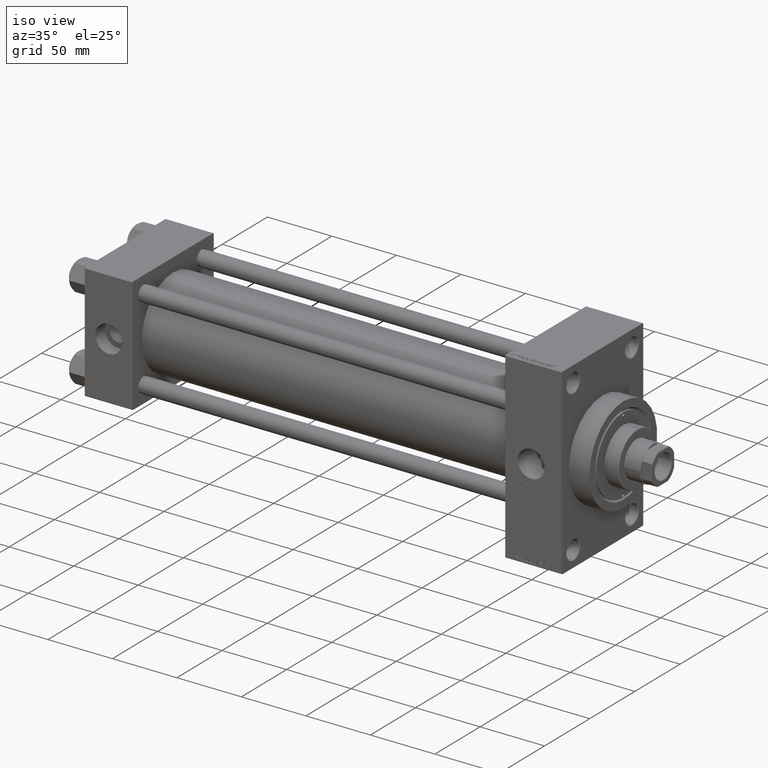
[diagram: clean part render]
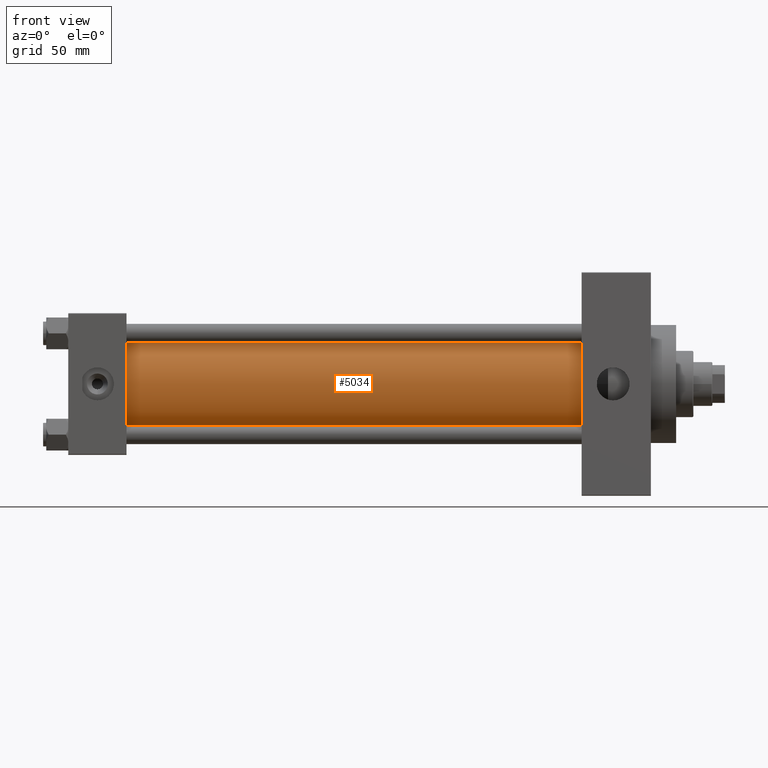
[diagram: tour spotlight — one face highlighted and labeled with its STEP entity id]
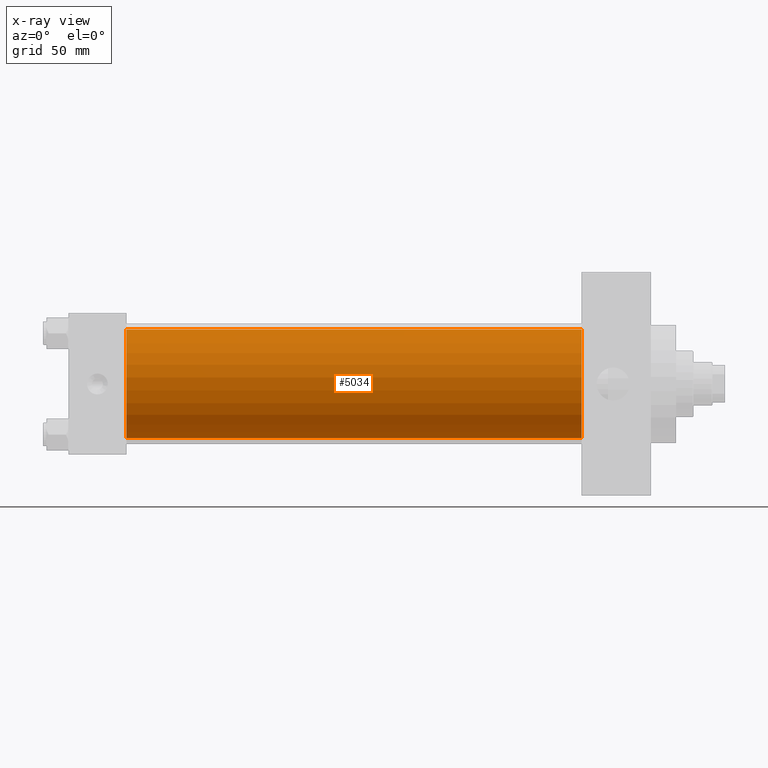
[diagram: x-ray of the same camera — body ghosted, this tour face saturated]
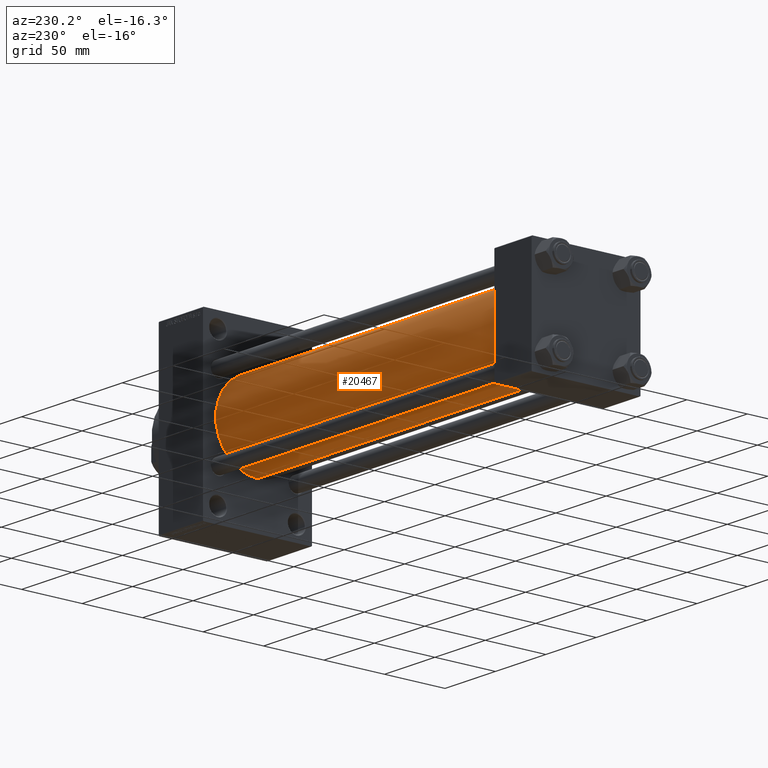
[diagram: tour spotlight — one face highlighted and labeled with its STEP entity id]
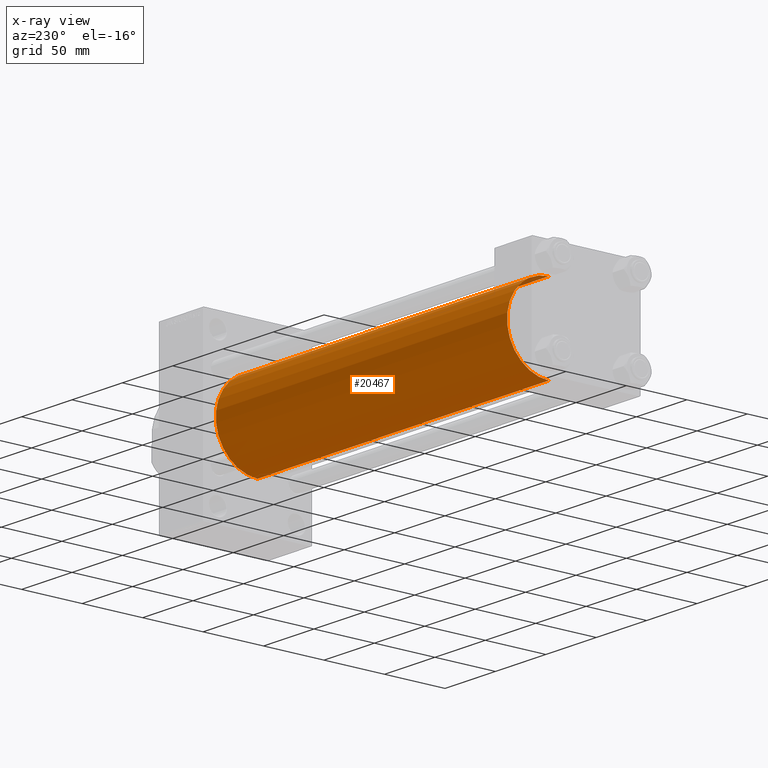
[diagram: x-ray of the same camera — body ghosted, this tour face saturated]
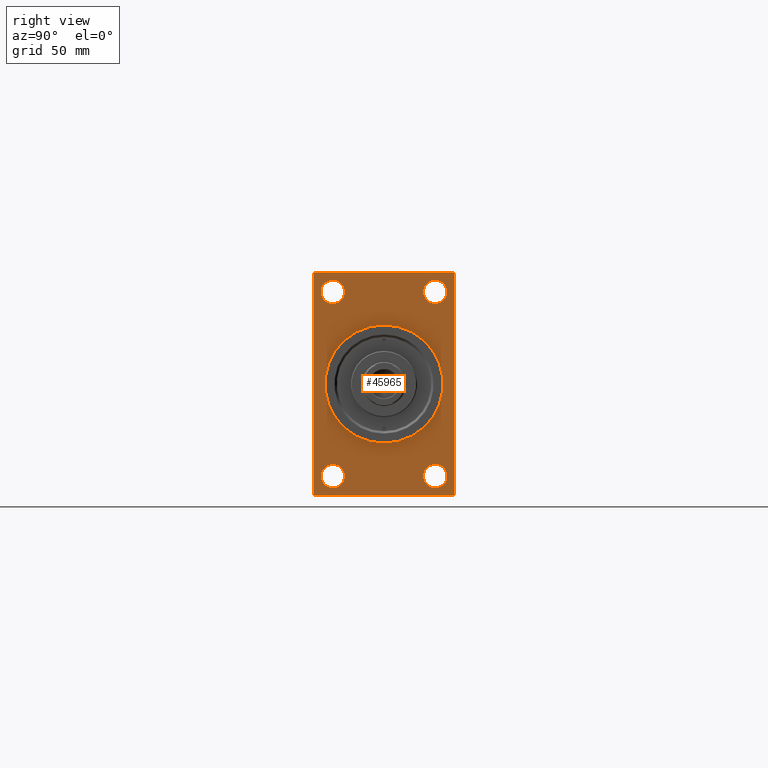
[diagram: tour spotlight — one face highlighted and labeled with its STEP entity id]
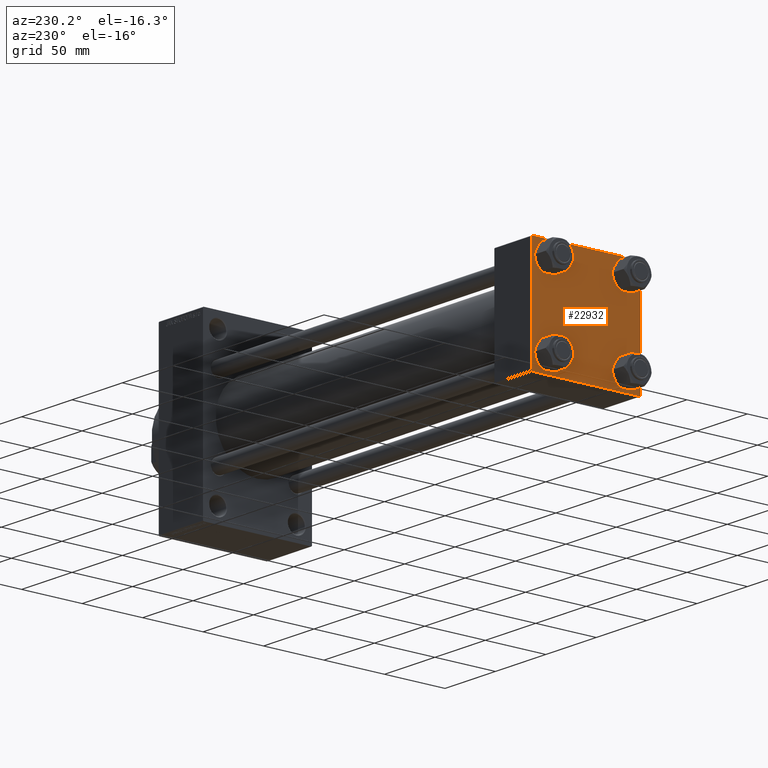
[diagram: tour spotlight — one face highlighted and labeled with its STEP entity id]
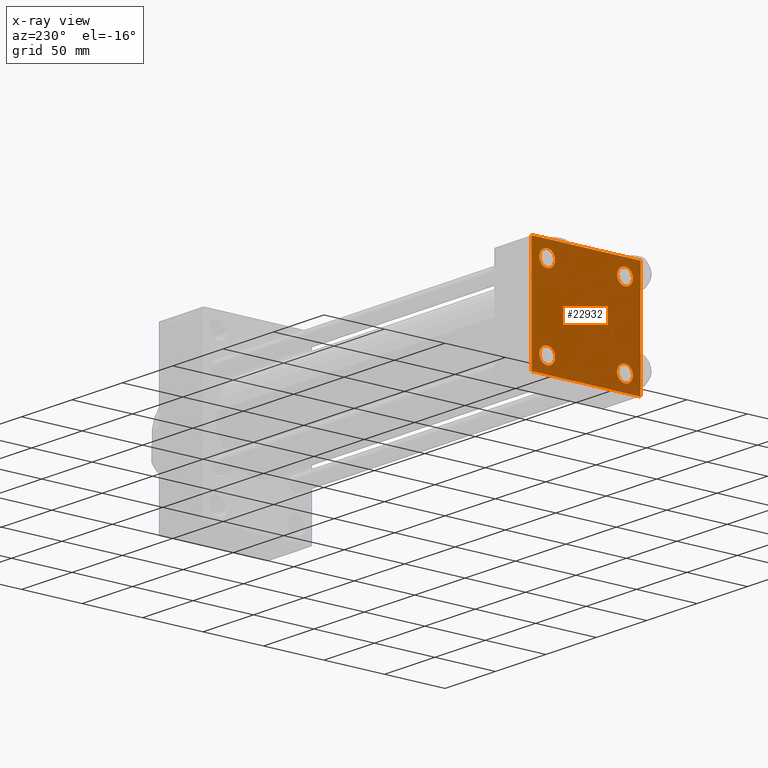
[diagram: x-ray of the same camera — body ghosted, this tour face saturated]
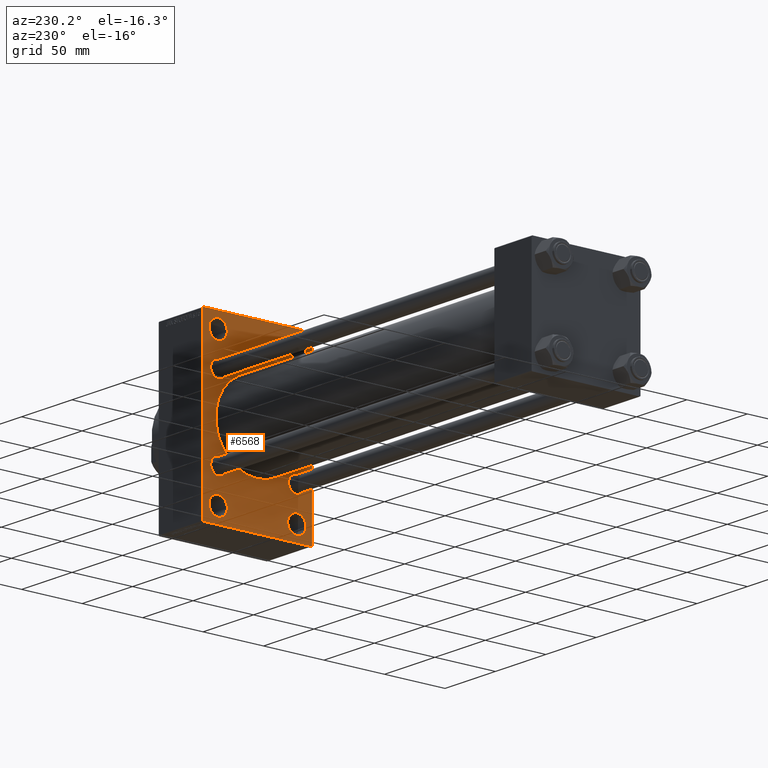
[diagram: tour spotlight — one face highlighted and labeled with its STEP entity id]
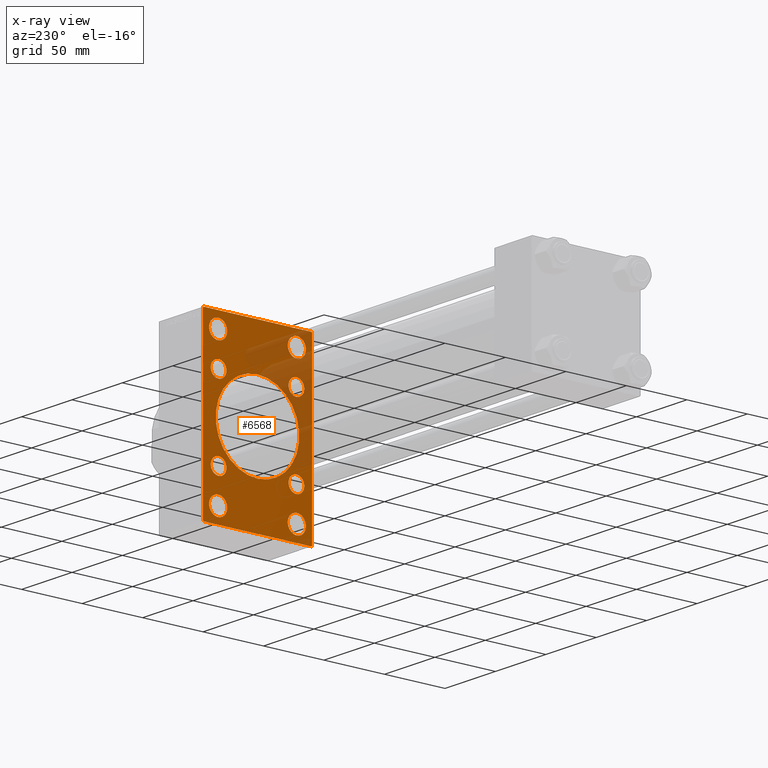
[diagram: x-ray of the same camera — body ghosted, this tour face saturated]
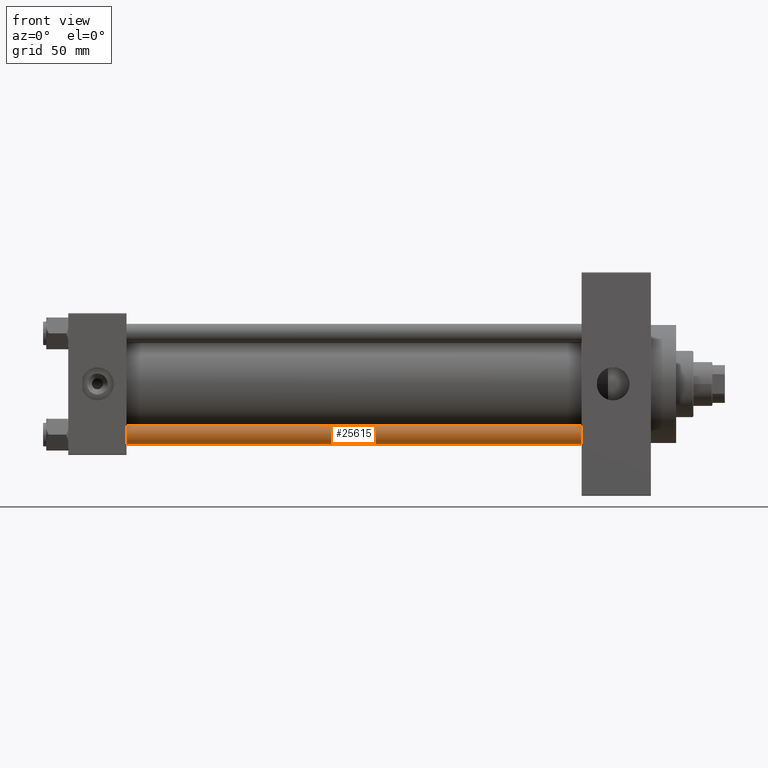
[diagram: tour spotlight — one face highlighted and labeled with its STEP entity id]
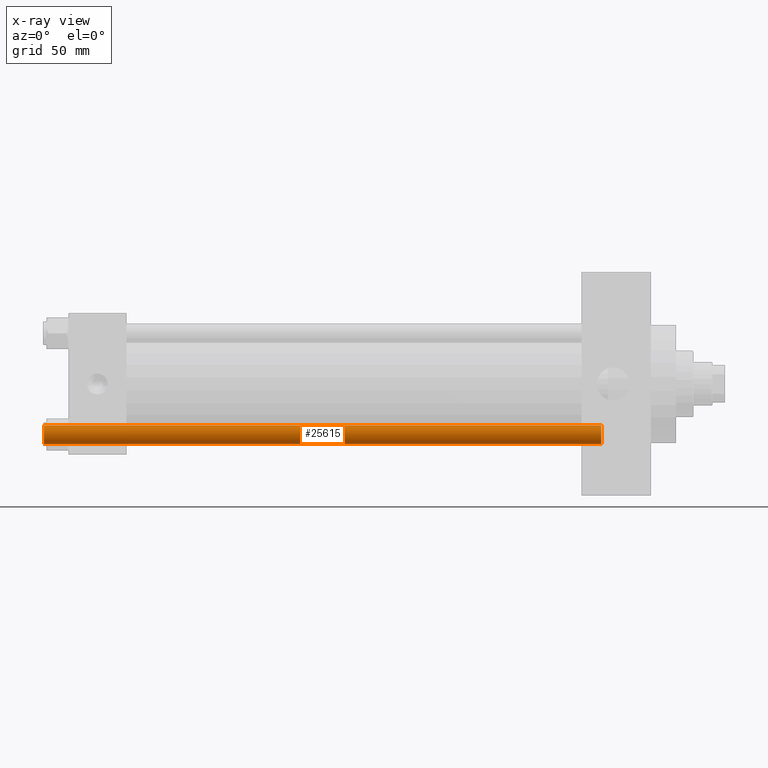
[diagram: x-ray of the same camera — body ghosted, this tour face saturated]
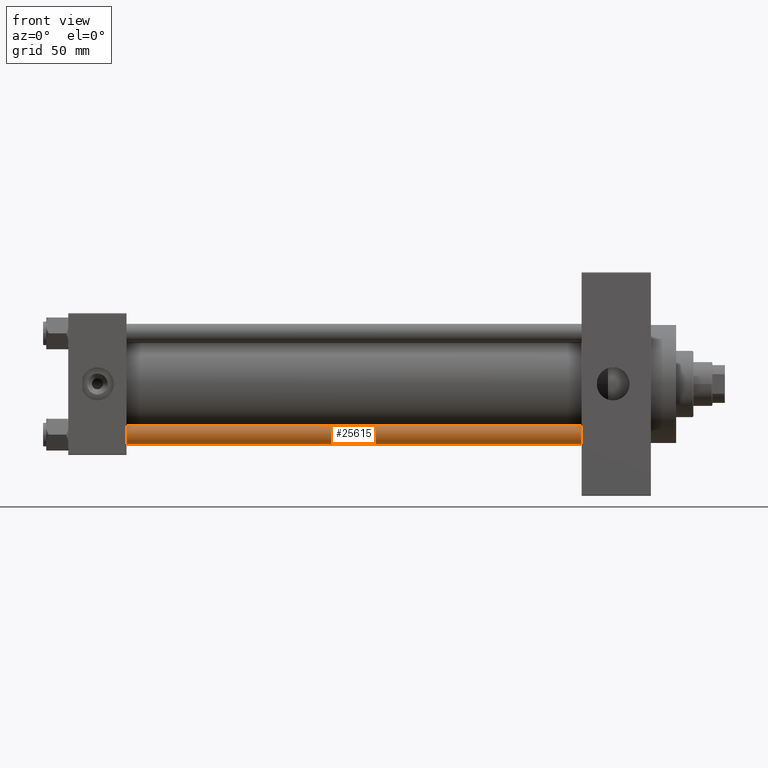
[diagram: tour spotlight — one face highlighted and labeled with its STEP entity id]
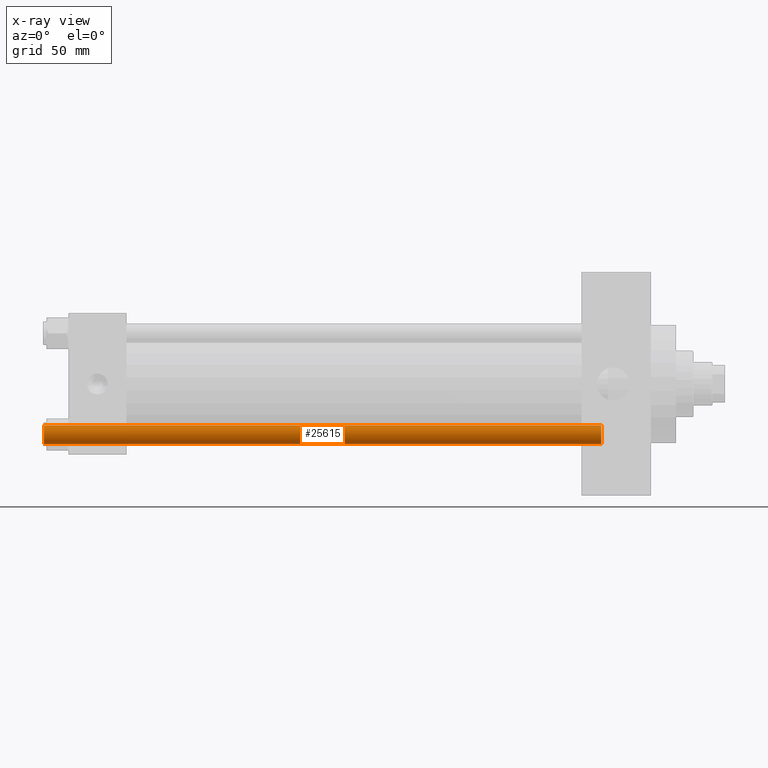
[diagram: x-ray of the same camera — body ghosted, this tour face saturated]
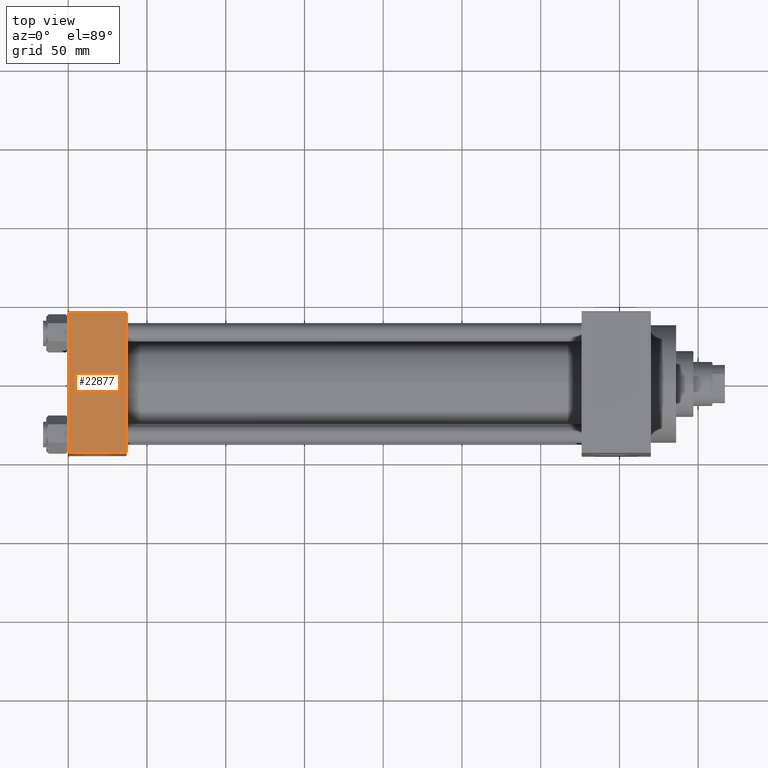
[diagram: tour spotlight — one face highlighted and labeled with its STEP entity id]
A machine part: a face-by-face anatomy tour. The part has 1112 B-rep faces; the first image is the clean iso view, then the 8 largest visible faces are spotlighted one at a time (largest first), each with its STEP entity span.

Face 1 — front view, entity #5034. An x-ray twin of the same camera follows (body ghosted, this face saturated) — the face is partly hidden behind the body. In plain terms, the highlighted cylindrical surface (partial cylindrical patch) has radius 34.5 mm, axis along (-1, -0, -0).
Definition (entity closure, byte-faithful):
#754 = ORIENTED_EDGE ( 'NONE', *, *, #7314, .T. ) ;
#2815 = CIRCLE ( 'NONE', #29628, 34.50000000000000000 ) ;
#3365 = AXIS2_PLACEMENT_3D ( 'NONE', #5653, #27486, #42090 ) ;
#3653 = CARTESIAN_POINT ( 'NONE',  ( 325.9999999999999432, -2.602085213965210642E-15, 0.000000000000000000 ) ) ;
#4261 = LINE ( 'NONE', #18427, #39010 ) ;
#5034 = ADVANCED_FACE ( 'NONE', ( #24366 ), #23891, .T. ) ;
#5653 = CARTESIAN_POINT ( 'NONE',  ( 325.9999999999999432, -2.602085213965210642E-15, 0.000000000000000000 ) ) ;
#7314 = EDGE_CURVE ( 'NONE', #47356, #41379, #41708, .T. ) ;
#7789 = CARTESIAN_POINT ( 'NONE',  ( 325.9999999999999432, 1.622946243093158675E-15, -34.50000000000000000 ) ) ;
#11256 = EDGE_CURVE ( 'NONE', #26909, #47356, #21054, .T. ) ;
#12790 = EDGE_CURVE ( 'NONE', #26909, #31089, #2815, .T. ) ;
#17417 = CARTESIAN_POINT ( 'NONE',  ( 36.99999999999997868, 1.622946243093158675E-15, -34.50000000000000000 ) ) ;
#17955 = DIRECTION ( 'NONE',  ( -1.000000000000000000, -0.000000000000000000, -0.000000000000000000 ) ) ;
#18110 = EDGE_LOOP ( 'NONE', ( #27757, #22223, #45384, #754 ) ) ;
#18427 = CARTESIAN_POINT ( 'NONE',  ( 325.9999999999999432, 1.622946243093158675E-15, -34.50000000000000000 ) ) ;
#21054 = LINE ( 'NONE', #35647, #38001 ) ;
#22223 = ORIENTED_EDGE ( 'NONE', *, *, #12790, .F. ) ;
#23860 = CARTESIAN_POINT ( 'NONE',  ( 36.99999999999997868, -2.602085213965210642E-15, 0.000000000000000000 ) ) ;
#23891 = CYLINDRICAL_SURFACE ( 'NONE', #3365, 34.50000000000000000 ) ;
#24366 = FACE_OUTER_BOUND ( 'NONE', #18110, .T. ) ;
#26752 = DIRECTION ( 'NONE',  ( 0.000000000000000000, 0.000000000000000000, 1.000000000000000000 ) ) ;
#26909 = VERTEX_POINT ( 'NONE', #40820 ) ;
#27486 = DIRECTION ( 'NONE',  ( -1.000000000000000000, -0.000000000000000000, -0.000000000000000000 ) ) ;
#27757 = ORIENTED_EDGE ( 'NONE', *, *, #44906, .F. ) ;
#28480 = DIRECTION ( 'NONE',  ( -1.000000000000000000, -0.000000000000000000, -0.000000000000000000 ) ) ;
#28573 = CARTESIAN_POINT ( 'NONE',  ( 36.99999999999997868, -2.602085213965210642E-15, 34.50000000000000000 ) ) ;
#29628 = AXIS2_PLACEMENT_3D ( 'NONE', #3653, #36014, #43686 ) ;
#31089 = VERTEX_POINT ( 'NONE', #7789 ) ;
#35647 = CARTESIAN_POINT ( 'NONE',  ( 325.9999999999999432, -2.602085213965210642E-15, 34.50000000000000000 ) ) ;
#36014 = DIRECTION ( 'NONE',  ( 1.000000000000000000, 0.000000000000000000, 0.000000000000000000 ) ) ;
#37750 = DIRECTION ( 'NONE',  ( 1.000000000000000000, -0.000000000000000000, 0.000000000000000000 ) ) ;
#38001 = VECTOR ( 'NONE', #28480, 1000.000000000000000 ) ;
#39010 = VECTOR ( 'NONE', #17955, 1000.000000000000000 ) ;
#40820 = CARTESIAN_POINT ( 'NONE',  ( 325.9999999999999432, -2.602085213965210642E-15, 34.50000000000000000 ) ) ;
#41379 = VERTEX_POINT ( 'NONE', #17417 ) ;
#41708 = CIRCLE ( 'NONE', #44779, 34.50000000000000000 ) ;
#42090 = DIRECTION ( 'NONE',  ( 0.000000000000000000, 0.000000000000000000, 1.000000000000000000 ) ) ;
#43686 = DIRECTION ( 'NONE',  ( 0.000000000000000000, 0.000000000000000000, -1.000000000000000000 ) ) ;
#44779 = AXIS2_PLACEMENT_3D ( 'NONE', #23860, #37750, #26752 ) ;
#44906 = EDGE_CURVE ( 'NONE', #31089, #41379, #4261, .T. ) ;
#45384 = ORIENTED_EDGE ( 'NONE', *, *, #11256, .T. ) ;
#47356 = VERTEX_POINT ( 'NONE', #28573 ) ;

Face 2 — auxiliary view, entity #20467. An x-ray twin of the same camera follows (body ghosted, this face saturated) — the face is partly hidden behind the body. In plain terms, the highlighted cylindrical surface (partial cylindrical patch) has radius 34.5 mm, axis along (-1, -0, -0).
Definition (entity closure, byte-faithful):
#1945 = ORIENTED_EDGE ( 'NONE', *, *, #18206, .F. ) ;
#3142 = CIRCLE ( 'NONE', #30750, 34.50000000000000000 ) ;
#4261 = LINE ( 'NONE', #18427, #39010 ) ;
#7789 = CARTESIAN_POINT ( 'NONE',  ( 325.9999999999999432, 1.622946243093158675E-15, -34.50000000000000000 ) ) ;
#8065 = EDGE_CURVE ( 'NONE', #41379, #47356, #42476, .T. ) ;
#9743 = ORIENTED_EDGE ( 'NONE', *, *, #8065, .T. ) ;
#11256 = EDGE_CURVE ( 'NONE', #26909, #47356, #21054, .T. ) ;
#12675 = DIRECTION ( 'NONE',  ( 1.000000000000000000, 0.000000000000000000, 0.000000000000000000 ) ) ;
#16133 = DIRECTION ( 'NONE',  ( 0.000000000000000000, 0.000000000000000000, 1.000000000000000000 ) ) ;
#16236 = DIRECTION ( 'NONE',  ( 1.000000000000000000, -0.000000000000000000, 0.000000000000000000 ) ) ;
#17417 = CARTESIAN_POINT ( 'NONE',  ( 36.99999999999997868, 1.622946243093158675E-15, -34.50000000000000000 ) ) ;
#17955 = DIRECTION ( 'NONE',  ( -1.000000000000000000, -0.000000000000000000, -0.000000000000000000 ) ) ;
#18206 = EDGE_CURVE ( 'NONE', #31089, #26909, #3142, .T. ) ;
#18427 = CARTESIAN_POINT ( 'NONE',  ( 325.9999999999999432, 1.622946243093158675E-15, -34.50000000000000000 ) ) ;
#20467 = ADVANCED_FACE ( 'NONE', ( #23781 ), #23552, .T. ) ;
#21054 = LINE ( 'NONE', #35647, #38001 ) ;
#23552 = CYLINDRICAL_SURFACE ( 'NONE', #45340, 34.50000000000000000 ) ;
#23781 = FACE_OUTER_BOUND ( 'NONE', #27720, .T. ) ;
#26909 = VERTEX_POINT ( 'NONE', #40820 ) ;
#26958 = ORIENTED_EDGE ( 'NONE', *, *, #44906, .T. ) ;
#27480 = CARTESIAN_POINT ( 'NONE',  ( 36.99999999999997868, -2.602085213965210642E-15, 0.000000000000000000 ) ) ;
#27720 = EDGE_LOOP ( 'NONE', ( #1945, #26958, #9743, #30943 ) ) ;
#28480 = DIRECTION ( 'NONE',  ( -1.000000000000000000, -0.000000000000000000, -0.000000000000000000 ) ) ;
#28573 = CARTESIAN_POINT ( 'NONE',  ( 36.99999999999997868, -2.602085213965210642E-15, 34.50000000000000000 ) ) ;
#30506 = DIRECTION ( 'NONE',  ( -1.000000000000000000, -0.000000000000000000, -0.000000000000000000 ) ) ;
#30750 = AXIS2_PLACEMENT_3D ( 'NONE', #31346, #12675, #34930 ) ;
#30943 = ORIENTED_EDGE ( 'NONE', *, *, #11256, .F. ) ;
#31089 = VERTEX_POINT ( 'NONE', #7789 ) ;
#31346 = CARTESIAN_POINT ( 'NONE',  ( 325.9999999999999432, -2.602085213965210642E-15, 0.000000000000000000 ) ) ;
#34930 = DIRECTION ( 'NONE',  ( 0.000000000000000000, 0.000000000000000000, -1.000000000000000000 ) ) ;
#35647 = CARTESIAN_POINT ( 'NONE',  ( 325.9999999999999432, -2.602085213965210642E-15, 34.50000000000000000 ) ) ;
#38001 = VECTOR ( 'NONE', #28480, 1000.000000000000000 ) ;
#38018 = DIRECTION ( 'NONE',  ( 0.000000000000000000, 0.000000000000000000, 1.000000000000000000 ) ) ;
#38375 = CARTESIAN_POINT ( 'NONE',  ( 325.9999999999999432, -2.602085213965210642E-15, 0.000000000000000000 ) ) ;
#39010 = VECTOR ( 'NONE', #17955, 1000.000000000000000 ) ;
#40820 = CARTESIAN_POINT ( 'NONE',  ( 325.9999999999999432, -2.602085213965210642E-15, 34.50000000000000000 ) ) ;
#41379 = VERTEX_POINT ( 'NONE', #17417 ) ;
#42476 = CIRCLE ( 'NONE', #43260, 34.50000000000000000 ) ;
#43260 = AXIS2_PLACEMENT_3D ( 'NONE', #27480, #16236, #38018 ) ;
#44906 = EDGE_CURVE ( 'NONE', #31089, #41379, #4261, .T. ) ;
#45340 = AXIS2_PLACEMENT_3D ( 'NONE', #38375, #30506, #16133 ) ;
#47356 = VERTEX_POINT ( 'NONE', #28573 ) ;

Face 3 — right view, entity #45965. In plain terms, the highlighted planar face has unit normal (-1, 0, 0).
Definition (entity closure, byte-faithful):
#64 = DIRECTION ( 'NONE',  ( 0.000000000000000000, 0.000000000000000000, 1.000000000000000000 ) ) ;
#88 = DIRECTION ( 'NONE',  ( 0.000000000000000000, 0.000000000000000000, 1.000000000000000000 ) ) ;
#863 = ORIENTED_EDGE ( 'NONE', *, *, #31308, .T. ) ;
#1010 = DIRECTION ( 'NONE',  ( 0.000000000000000000, 0.000000000000000000, -1.000000000000000000 ) ) ;
#1274 = VERTEX_POINT ( 'NONE', #34742 ) ;
#1371 = VERTEX_POINT ( 'NONE', #2385 ) ;
#1402 = FACE_BOUND ( 'NONE', #39105, .T. ) ;
#1416 = CARTESIAN_POINT ( 'NONE',  ( 369.9999999999999432, -32.50000000000000000, -58.49999999999999289 ) ) ;
#1643 = PLANE ( 'NONE',  #29707 ) ;
#1938 = VERTEX_POINT ( 'NONE', #41271 ) ;
#2017 = DIRECTION ( 'NONE',  ( -0.000000000000000000, -0.7071067811865426878, -0.7071067811865524577 ) ) ;
#2056 = AXIS2_PLACEMENT_3D ( 'NONE', #32544, #3536, #40204 ) ;
#2228 = LINE ( 'NONE', #9416, #29222 ) ;
#2385 = CARTESIAN_POINT ( 'NONE',  ( 369.9999999999999432, 44.49999999999996447, 71.00000000000000000 ) ) ;
#2427 = CARTESIAN_POINT ( 'NONE',  ( 369.9999999999999432, 45.00000000000002132, 71.00000000000000000 ) ) ;
#3432 = DIRECTION ( 'NONE',  ( -1.000000000000000000, 0.000000000000000000, -0.000000000000000000 ) ) ;
#3536 = DIRECTION ( 'NONE',  ( -1.000000000000000000, 0.000000000000000000, -0.000000000000000000 ) ) ;
#3602 = CARTESIAN_POINT ( 'NONE',  ( 369.9999999999999432, -32.50000000000000000, -50.99999999999992895 ) ) ;
#3651 = DIRECTION ( 'NONE',  ( 1.000000000000000000, 0.000000000000000000, 0.000000000000000000 ) ) ;
#3810 = ORIENTED_EDGE ( 'NONE', *, *, #27121, .T. ) ;
#4283 = VERTEX_POINT ( 'NONE', #14480 ) ;
#4687 = CARTESIAN_POINT ( 'NONE',  ( 369.9999999999999432, 44.49999999999996447, 71.00000000000000000 ) ) ;
#5063 = CARTESIAN_POINT ( 'NONE',  ( 369.9999999999999432, 45.00000000000002132, 71.00000000000000000 ) ) ;
#5092 = ORIENTED_EDGE ( 'NONE', *, *, #7584, .T. ) ;
#5226 = FACE_BOUND ( 'NONE', #39947, .T. ) ;
#5267 = ORIENTED_EDGE ( 'NONE', *, *, #38667, .T. ) ;
#5598 = EDGE_LOOP ( 'NONE', ( #12238, #12854, #40300, #14846, #25528, #44657, #3810, #863 ) ) ;
#5726 = DIRECTION ( 'NONE',  ( 0.000000000000000000, 0.000000000000000000, -1.000000000000000000 ) ) ;
#5898 = VERTEX_POINT ( 'NONE', #23731 ) ;
#6038 = CIRCLE ( 'NONE', #22889, 7.500000000000047962 ) ;
#6048 = DIRECTION ( 'NONE',  ( 0.000000000000000000, -1.000000000000000000, -1.541976423090495633E-16 ) ) ;
#6150 = DIRECTION ( 'NONE',  ( 0.000000000000000000, 0.000000000000000000, 1.000000000000000000 ) ) ;
#6598 = DIRECTION ( 'NONE',  ( -1.000000000000000000, 0.000000000000000000, -0.000000000000000000 ) ) ;
#6610 = VERTEX_POINT ( 'NONE', #3602 ) ;
#7086 = DIRECTION ( 'NONE',  ( 0.000000000000000000, 0.000000000000000000, -1.000000000000000000 ) ) ;
#7278 = CARTESIAN_POINT ( 'NONE',  ( 369.9999999999999432, -32.50000000000000000, 58.50000000000000711 ) ) ;
#7529 = CIRCLE ( 'NONE', #12905, 7.500000000000047962 ) ;
#7584 = EDGE_CURVE ( 'NONE', #1938, #6610, #37899, .T. ) ;
#7861 = CARTESIAN_POINT ( 'NONE',  ( 369.9999999999999432, -44.99999999999997158, -70.50000000000005684 ) ) ;
#8067 = AXIS2_PLACEMENT_3D ( 'NONE', #1416, #15332, #19649 ) ;
#8151 = AXIS2_PLACEMENT_3D ( 'NONE', #7278, #3432, #64 ) ;
#8261 = ORIENTED_EDGE ( 'NONE', *, *, #32880, .T. ) ;
#9208 = CARTESIAN_POINT ( 'NONE',  ( 369.9999999999999432, 32.50000000000000711, 66.00000000000005684 ) ) ;
#9214 = CARTESIAN_POINT ( 'NONE',  ( 369.9999999999999432, 45.00000000000001421, -70.49999999999991473 ) ) ;
#9399 = VERTEX_POINT ( 'NONE', #45342 ) ;
#9416 = CARTESIAN_POINT ( 'NONE',  ( 369.9999999999999432, 45.00000000000001421, -70.99999999999998579 ) ) ;
#9969 = ORIENTED_EDGE ( 'NONE', *, *, #12386, .F. ) ;
#9995 = CARTESIAN_POINT ( 'NONE',  ( 369.9999999999999432, 32.50000000000000711, 58.50000000000000711 ) ) ;
#10247 = EDGE_CURVE ( 'NONE', #5898, #16514, #12825, .T. ) ;
#10435 = VERTEX_POINT ( 'NONE', #24927 ) ;
#10500 = VECTOR ( 'NONE', #23564, 1000.000000000000000 ) ;
#10689 = DIRECTION ( 'NONE',  ( 1.000000000000000000, 0.000000000000000000, 0.000000000000000000 ) ) ;
#11969 = CARTESIAN_POINT ( 'NONE',  ( 369.9999999999999432, 32.50000000000000711, 58.50000000000000711 ) ) ;
#12037 = LINE ( 'NONE', #5063, #33941 ) ;
#12238 = ORIENTED_EDGE ( 'NONE', *, *, #16918, .T. ) ;
#12354 = VERTEX_POINT ( 'NONE', #39445 ) ;
#12386 = EDGE_CURVE ( 'NONE', #33421, #26577, #31177, .T. ) ;
#12825 = LINE ( 'NONE', #9214, #28807 ) ;
#12854 = ORIENTED_EDGE ( 'NONE', *, *, #29510, .T. ) ;
#12905 = AXIS2_PLACEMENT_3D ( 'NONE', #24346, #42304, #39176 ) ;
#13295 = DIRECTION ( 'NONE',  ( -0.000000000000000000, 0.7071067811865771047, 0.7071067811865180408 ) ) ;
#14314 = CIRCLE ( 'NONE', #41887, 7.500000000000055067 ) ;
#14466 = VECTOR ( 'NONE', #5726, 1000.000000000000000 ) ;
#14480 = CARTESIAN_POINT ( 'NONE',  ( 369.9999999999999432, -44.49999999999983658, 70.99999999999998579 ) ) ;
#14846 = ORIENTED_EDGE ( 'NONE', *, *, #10247, .T. ) ;
#15332 = DIRECTION ( 'NONE',  ( -1.000000000000000000, 0.000000000000000000, -0.000000000000000000 ) ) ;
#15555 = FACE_BOUND ( 'NONE', #29355, .T. ) ;
#16168 = EDGE_CURVE ( 'NONE', #31293, #20289, #6038, .T. ) ;
#16280 = CARTESIAN_POINT ( 'NONE',  ( 369.9999999999999432, 0.000000000000000000, 0.000000000000000000 ) ) ;
#16508 = FACE_BOUND ( 'NONE', #35066, .T. ) ;
#16514 = VERTEX_POINT ( 'NONE', #30734 ) ;
#16574 = CIRCLE ( 'NONE', #8151, 7.500000000000047962 ) ;
#16918 = EDGE_CURVE ( 'NONE', #38143, #17211, #23964, .T. ) ;
#17211 = VERTEX_POINT ( 'NONE', #7861 ) ;
#17335 = EDGE_CURVE ( 'NONE', #20289, #31293, #41373, .T. ) ;
#18759 = CARTESIAN_POINT ( 'NONE',  ( 369.9999999999999432, 0.000000000000000000, 0.000000000000000000 ) ) ;
#19247 = AXIS2_PLACEMENT_3D ( 'NONE', #18759, #3651, #1010 ) ;
#19255 = ORIENTED_EDGE ( 'NONE', *, *, #21219, .F. ) ;
#19643 = DIRECTION ( 'NONE',  ( -1.000000000000000000, 0.000000000000000000, -0.000000000000000000 ) ) ;
#19649 = DIRECTION ( 'NONE',  ( 0.000000000000000000, 0.000000000000000000, 1.000000000000000000 ) ) ;
#19698 = AXIS2_PLACEMENT_3D ( 'NONE', #44216, #10689, #7086 ) ;
#19814 = EDGE_LOOP ( 'NONE', ( #5092, #5267 ) ) ;
#20037 = DIRECTION ( 'NONE',  ( 0.000000000000000000, -0.7071067811865867636, 0.7071067811865081598 ) ) ;
#20289 = VERTEX_POINT ( 'NONE', #32402 ) ;
#20370 = CARTESIAN_POINT ( 'NONE',  ( 369.9999999999999432, -44.99999999999997158, 70.99999999999998579 ) ) ;
#20943 = LINE ( 'NONE', #38437, #25656 ) ;
#21219 = EDGE_CURVE ( 'NONE', #26577, #33421, #39998, .T. ) ;
#21320 = DIRECTION ( 'NONE',  ( 0.000000000000000000, 0.000000000000000000, 1.000000000000000000 ) ) ;
#21508 = AXIS2_PLACEMENT_3D ( 'NONE', #9995, #35850, #6150 ) ;
#22285 = ORIENTED_EDGE ( 'NONE', *, *, #46853, .T. ) ;
#22679 = LINE ( 'NONE', #4687, #37104 ) ;
#22889 = AXIS2_PLACEMENT_3D ( 'NONE', #11969, #19643, #38069 ) ;
#22962 = VERTEX_POINT ( 'NONE', #35281 ) ;
#22971 = EDGE_CURVE ( 'NONE', #5898, #22962, #2228, .T. ) ;
#23057 = DIRECTION ( 'NONE',  ( 0.000000000000000000, -1.000000000000000000, -1.541976423090495387E-16 ) ) ;
#23227 = FACE_OUTER_BOUND ( 'NONE', #5598, .T. ) ;
#23482 = ORIENTED_EDGE ( 'NONE', *, *, #17335, .T. ) ;
#23564 = DIRECTION ( 'NONE',  ( 0.000000000000000000, -4.886545002751570165E-17, -1.000000000000000000 ) ) ;
#23731 = CARTESIAN_POINT ( 'NONE',  ( 369.9999999999999432, 44.49999999999990052, -70.99999999999998579 ) ) ;
#23964 = LINE ( 'NONE', #20370, #14466 ) ;
#24346 = CARTESIAN_POINT ( 'NONE',  ( 369.9999999999999432, -32.50000000000000000, 58.50000000000000711 ) ) ;
#24455 = CARTESIAN_POINT ( 'NONE',  ( 369.9999999999999432, -44.49999999999997158, -71.00000000000000000 ) ) ;
#24913 = DIRECTION ( 'NONE',  ( -1.000000000000000000, 0.000000000000000000, -0.000000000000000000 ) ) ;
#24927 = CARTESIAN_POINT ( 'NONE',  ( 369.9999999999999432, -32.50000000000000000, 66.00000000000005684 ) ) ;
#25528 = ORIENTED_EDGE ( 'NONE', *, *, #40050, .F. ) ;
#25656 = VECTOR ( 'NONE', #2017, 1000.000000000000000 ) ;
#26577 = VERTEX_POINT ( 'NONE', #40883 ) ;
#26768 = AXIS2_PLACEMENT_3D ( 'NONE', #35219, #24913, #21320 ) ;
#27121 = EDGE_CURVE ( 'NONE', #1371, #4283, #12037, .T. ) ;
#27152 = VECTOR ( 'NONE', #42408, 1000.000000000000114 ) ;
#27620 = LINE ( 'NONE', #2427, #10500 ) ;
#28053 = CIRCLE ( 'NONE', #2056, 7.500000000000062172 ) ;
#28538 = CARTESIAN_POINT ( 'NONE',  ( 369.9999999999999432, 4.592425496802575156E-15, -37.50000000000000711 ) ) ;
#28807 = VECTOR ( 'NONE', #13295, 999.9999999999998863 ) ;
#29222 = VECTOR ( 'NONE', #6048, 1000.000000000000000 ) ;
#29355 = EDGE_LOOP ( 'NONE', ( #23482, #44109 ) ) ;
#29510 = EDGE_CURVE ( 'NONE', #17211, #22962, #38118, .T. ) ;
#29686 = EDGE_CURVE ( 'NONE', #37878, #1371, #22679, .T. ) ;
#29707 = AXIS2_PLACEMENT_3D ( 'NONE', #16280, #40938, #30880 ) ;
#30734 = CARTESIAN_POINT ( 'NONE',  ( 369.9999999999999432, 45.00000000000001421, -70.49999999999991473 ) ) ;
#30880 = DIRECTION ( 'NONE',  ( -0.000000000000000000, 0.000000000000000000, 1.000000000000000000 ) ) ;
#31177 = CIRCLE ( 'NONE', #19698, 37.50000000000000711 ) ;
#31293 = VERTEX_POINT ( 'NONE', #9208 ) ;
#31308 = EDGE_CURVE ( 'NONE', #4283, #38143, #20943, .T. ) ;
#32010 = CARTESIAN_POINT ( 'NONE',  ( 369.9999999999999432, -32.50000000000000000, -58.49999999999999289 ) ) ;
#32402 = CARTESIAN_POINT ( 'NONE',  ( 369.9999999999999432, 32.50000000000000711, 50.99999999999996447 ) ) ;
#32544 = CARTESIAN_POINT ( 'NONE',  ( 369.9999999999999432, 32.50000000000000711, -58.50000000000000000 ) ) ;
#32880 = EDGE_CURVE ( 'NONE', #9399, #10435, #16574, .T. ) ;
#33421 = VERTEX_POINT ( 'NONE', #28538 ) ;
#33734 = EDGE_CURVE ( 'NONE', #1274, #12354, #28053, .T. ) ;
#33941 = VECTOR ( 'NONE', #23057, 1000.000000000000000 ) ;
#34265 = ORIENTED_EDGE ( 'NONE', *, *, #33734, .T. ) ;
#34742 = CARTESIAN_POINT ( 'NONE',  ( 369.9999999999999432, 32.50000000000000711, -66.00000000000005684 ) ) ;
#35066 = EDGE_LOOP ( 'NONE', ( #8261, #22285 ) ) ;
#35219 = CARTESIAN_POINT ( 'NONE',  ( 369.9999999999999432, 32.50000000000000711, -58.50000000000000000 ) ) ;
#35281 = CARTESIAN_POINT ( 'NONE',  ( 369.9999999999999432, -44.49999999999994316, -71.00000000000000000 ) ) ;
#35850 = DIRECTION ( 'NONE',  ( -1.000000000000000000, 0.000000000000000000, -0.000000000000000000 ) ) ;
#36730 = CARTESIAN_POINT ( 'NONE',  ( 369.9999999999999432, 45.00000000000002132, 70.50000000000000000 ) ) ;
#37104 = VECTOR ( 'NONE', #20037, 1000.000000000000000 ) ;
#37342 = FACE_BOUND ( 'NONE', #19814, .T. ) ;
#37878 = VERTEX_POINT ( 'NONE', #36730 ) ;
#37899 = CIRCLE ( 'NONE', #8067, 7.500000000000055067 ) ;
#38069 = DIRECTION ( 'NONE',  ( 0.000000000000000000, 0.000000000000000000, 1.000000000000000000 ) ) ;
#38118 = LINE ( 'NONE', #24455, #27152 ) ;
#38143 = VERTEX_POINT ( 'NONE', #45507 ) ;
#38437 = CARTESIAN_POINT ( 'NONE',  ( 369.9999999999999432, -44.99999999999997158, 70.49999999999987210 ) ) ;
#38667 = EDGE_CURVE ( 'NONE', #6610, #1938, #14314, .T. ) ;
#39105 = EDGE_LOOP ( 'NONE', ( #34265, #40834 ) ) ;
#39176 = DIRECTION ( 'NONE',  ( 0.000000000000000000, 0.000000000000000000, 1.000000000000000000 ) ) ;
#39445 = CARTESIAN_POINT ( 'NONE',  ( 369.9999999999999432, 32.50000000000000711, -50.99999999999993605 ) ) ;
#39947 = EDGE_LOOP ( 'NONE', ( #19255, #9969 ) ) ;
#39998 = CIRCLE ( 'NONE', #19247, 37.50000000000000711 ) ;
#40050 = EDGE_CURVE ( 'NONE', #37878, #16514, #27620, .T. ) ;
#40204 = DIRECTION ( 'NONE',  ( 0.000000000000000000, 0.000000000000000000, 1.000000000000000000 ) ) ;
#40300 = ORIENTED_EDGE ( 'NONE', *, *, #22971, .F. ) ;
#40834 = ORIENTED_EDGE ( 'NONE', *, *, #45704, .T. ) ;
#40883 = CARTESIAN_POINT ( 'NONE',  ( 369.9999999999999432, 0.000000000000000000, 37.50000000000000711 ) ) ;
#40938 = DIRECTION ( 'NONE',  ( -1.000000000000000000, 0.000000000000000000, -0.000000000000000000 ) ) ;
#41271 = CARTESIAN_POINT ( 'NONE',  ( 369.9999999999999432, -32.50000000000000000, -66.00000000000004263 ) ) ;
#41373 = CIRCLE ( 'NONE', #21508, 7.500000000000047962 ) ;
#41887 = AXIS2_PLACEMENT_3D ( 'NONE', #32010, #6598, #88 ) ;
#42304 = DIRECTION ( 'NONE',  ( -1.000000000000000000, 0.000000000000000000, -0.000000000000000000 ) ) ;
#42408 = DIRECTION ( 'NONE',  ( 0.000000000000000000, 0.7071067811865965336, -0.7071067811864985009 ) ) ;
#44109 = ORIENTED_EDGE ( 'NONE', *, *, #16168, .T. ) ;
#44216 = CARTESIAN_POINT ( 'NONE',  ( 369.9999999999999432, 0.000000000000000000, 0.000000000000000000 ) ) ;
#44657 = ORIENTED_EDGE ( 'NONE', *, *, #29686, .T. ) ;
#45342 = CARTESIAN_POINT ( 'NONE',  ( 369.9999999999999432, -32.50000000000000000, 50.99999999999996447 ) ) ;
#45507 = CARTESIAN_POINT ( 'NONE',  ( 369.9999999999999432, -44.99999999999997158, 70.49999999999987210 ) ) ;
#45704 = EDGE_CURVE ( 'NONE', #12354, #1274, #47420, .T. ) ;
#45965 = ADVANCED_FACE ( 'NONE', ( #16508, #37342, #1402, #15555, #5226, #23227 ), #1643, .F. ) ;
#46853 = EDGE_CURVE ( 'NONE', #10435, #9399, #7529, .T. ) ;
#47420 = CIRCLE ( 'NONE', #26768, 7.500000000000062172 ) ;

Face 4 — auxiliary view, entity #22932. An x-ray twin of the same camera follows (body ghosted, this face saturated) — the face is partly hidden behind the body. In plain terms, the highlighted planar face has unit normal (-1, 0, 0).
Definition (entity closure, byte-faithful):
#207 = CARTESIAN_POINT ( 'NONE',  ( 0.000000000000000000, 44.99999999999998579, -44.99999999999998579 ) ) ;
#354 = AXIS2_PLACEMENT_3D ( 'NONE', #38320, #4779, #20361 ) ;
#398 = DIRECTION ( 'NONE',  ( 1.000000000000000000, -0.000000000000000000, 0.000000000000000000 ) ) ;
#495 = ORIENTED_EDGE ( 'NONE', *, *, #37771, .T. ) ;
#576 = VERTEX_POINT ( 'NONE', #6440 ) ;
#745 = ORIENTED_EDGE ( 'NONE', *, *, #30540, .T. ) ;
#1570 = DIRECTION ( 'NONE',  ( 0.000000000000000000, -0.7071067811865474617, 0.7071067811865474617 ) ) ;
#1678 = VERTEX_POINT ( 'NONE', #40171 ) ;
#1974 = EDGE_CURVE ( 'NONE', #9246, #21414, #26408, .T. ) ;
#2121 = AXIS2_PLACEMENT_3D ( 'NONE', #41780, #46316, #27875 ) ;
#2428 = CARTESIAN_POINT ( 'NONE',  ( 0.000000000000000000, -45.00000000000000000, -44.49999999999995737 ) ) ;
#2455 = DIRECTION ( 'NONE',  ( -1.000000000000000000, 0.000000000000000000, -0.000000000000000000 ) ) ;
#3656 = VECTOR ( 'NONE', #23704, 1000.000000000000114 ) ;
#3679 = EDGE_CURVE ( 'NONE', #25964, #22891, #39336, .T. ) ;
#3874 = EDGE_CURVE ( 'NONE', #46074, #7015, #7169, .T. ) ;
#3906 = CARTESIAN_POINT ( 'NONE',  ( 0.000000000000000000, -32.14999999999997726, 32.15000000000001279 ) ) ;
#4311 = CARTESIAN_POINT ( 'NONE',  ( 0.000000000000000000, 44.99999999999998579, 45.00000000000001421 ) ) ;
#4692 = CIRCLE ( 'NONE', #40640, 6.500000000000019540 ) ;
#4730 = AXIS2_PLACEMENT_3D ( 'NONE', #35050, #2455, #8957 ) ;
#4779 = DIRECTION ( 'NONE',  ( 1.000000000000000000, -0.000000000000000000, 0.000000000000000000 ) ) ;
#6143 = EDGE_CURVE ( 'NONE', #576, #10839, #27877, .T. ) ;
#6233 = CARTESIAN_POINT ( 'NONE',  ( 0.000000000000000000, 32.14999999999999147, 25.65000000000002700 ) ) ;
#6440 = CARTESIAN_POINT ( 'NONE',  ( 0.000000000000000000, 32.14999999999999147, 38.64999999999999147 ) ) ;
#7015 = VERTEX_POINT ( 'NONE', #22262 ) ;
#7169 = CIRCLE ( 'NONE', #40065, 6.500000000000019540 ) ;
#7347 = CARTESIAN_POINT ( 'NONE',  ( 0.000000000000000000, -32.14999999999997726, 38.65000000000003411 ) ) ;
#7433 = DIRECTION ( 'NONE',  ( 0.000000000000000000, -1.000000000000000000, -1.541976423090495633E-16 ) ) ;
#7955 = CARTESIAN_POINT ( 'NONE',  ( 0.000000000000000000, 44.49999999999998579, -44.99999999999998579 ) ) ;
#8483 = CARTESIAN_POINT ( 'NONE',  ( 0.000000000000000000, 44.99999999999998579, 44.50000000000001421 ) ) ;
#8957 = DIRECTION ( 'NONE',  ( -0.000000000000000000, 0.000000000000000000, 1.000000000000000000 ) ) ;
#9246 = VERTEX_POINT ( 'NONE', #16410 ) ;
#9426 = ORIENTED_EDGE ( 'NONE', *, *, #3679, .T. ) ;
#10298 = VECTOR ( 'NONE', #23309, 1000.000000000000000 ) ;
#10606 = CARTESIAN_POINT ( 'NONE',  ( -0.000000000000000000, -44.75000000000029843, 44.74999999999967315 ) ) ;
#10839 = VERTEX_POINT ( 'NONE', #6233 ) ;
#11836 = DIRECTION ( 'NONE',  ( 0.000000000000000000, 0.000000000000000000, 1.000000000000000000 ) ) ;
#12560 = FACE_BOUND ( 'NONE', #14059, .T. ) ;
#13729 = EDGE_CURVE ( 'NONE', #34826, #40435, #25076, .T. ) ;
#14059 = EDGE_LOOP ( 'NONE', ( #40474, #27250 ) ) ;
#14111 = EDGE_CURVE ( 'NONE', #33872, #1678, #25105, .T. ) ;
#14160 = AXIS2_PLACEMENT_3D ( 'NONE', #37323, #398, #33010 ) ;
#14607 = CARTESIAN_POINT ( 'NONE',  ( 0.000000000000000000, 32.14999999999999147, -32.15000000000000568 ) ) ;
#14634 = ORIENTED_EDGE ( 'NONE', *, *, #1974, .F. ) ;
#14668 = DIRECTION ( 'NONE',  ( -0.000000000000000000, 0.7071067811865425767, 0.7071067811865524577 ) ) ;
#14732 = EDGE_CURVE ( 'NONE', #9246, #25570, #40295, .T. ) ;
#15006 = CARTESIAN_POINT ( 'NONE',  ( 0.000000000000000000, -32.14999999999997726, 32.15000000000001279 ) ) ;
#15363 = DIRECTION ( 'NONE',  ( 0.000000000000000000, -1.000000000000000000, -1.541976423090495387E-16 ) ) ;
#15943 = DIRECTION ( 'NONE',  ( 1.000000000000000000, -0.000000000000000000, 0.000000000000000000 ) ) ;
#16015 = VERTEX_POINT ( 'NONE', #16591 ) ;
#16050 = LINE ( 'NONE', #30658, #3656 ) ;
#16410 = CARTESIAN_POINT ( 'NONE',  ( 0.000000000000000000, -45.00000000000000711, 44.49999999999997158 ) ) ;
#16416 = ORIENTED_EDGE ( 'NONE', *, *, #14111, .T. ) ;
#16591 = CARTESIAN_POINT ( 'NONE',  ( 0.000000000000000000, -44.49999999999995737, -45.00000000000000000 ) ) ;
#17231 = ORIENTED_EDGE ( 'NONE', *, *, #21406, .T. ) ;
#17529 = DIRECTION ( 'NONE',  ( 0.000000000000000000, 0.000000000000000000, 1.000000000000000000 ) ) ;
#17548 = VECTOR ( 'NONE', #15363, 1000.000000000000000 ) ;
#18062 = CARTESIAN_POINT ( 'NONE',  ( 0.000000000000000000, -32.14999999999997726, -38.64999999999999147 ) ) ;
#18471 = LINE ( 'NONE', #4311, #17548 ) ;
#18640 = VECTOR ( 'NONE', #24265, 1000.000000000000000 ) ;
#18687 = EDGE_CURVE ( 'NONE', #7015, #46074, #4692, .T. ) ;
#20225 = CARTESIAN_POINT ( 'NONE',  ( 0.000000000000000000, -32.14999999999997726, -32.15000000000001279 ) ) ;
#20255 = LINE ( 'NONE', #24091, #28049 ) ;
#20361 = DIRECTION ( 'NONE',  ( 0.000000000000000000, 0.000000000000000000, 1.000000000000000000 ) ) ;
#20436 = CARTESIAN_POINT ( 'NONE',  ( 0.000000000000000000, 44.99999999999998579, 45.00000000000001421 ) ) ;
#21048 = CIRCLE ( 'NONE', #354, 6.499999999999977796 ) ;
#21406 = EDGE_CURVE ( 'NONE', #10839, #576, #27019, .T. ) ;
#21414 = VERTEX_POINT ( 'NONE', #2428 ) ;
#21800 = ORIENTED_EDGE ( 'NONE', *, *, #34848, .T. ) ;
#22262 = CARTESIAN_POINT ( 'NONE',  ( 0.000000000000000000, -32.14999999999997726, 25.64999999999999147 ) ) ;
#22891 = VERTEX_POINT ( 'NONE', #27412 ) ;
#22932 = ADVANCED_FACE ( 'NONE', ( #12560, #42486, #34593, #24287, #45847 ), #24520, .T. ) ;
#23309 = DIRECTION ( 'NONE',  ( 0.000000000000000000, 7.709882115452476934E-17, -1.000000000000000000 ) ) ;
#23481 = EDGE_LOOP ( 'NONE', ( #37003, #17231 ) ) ;
#23704 = DIRECTION ( 'NONE',  ( 0.000000000000000000, 0.7071067811865474617, -0.7071067811865474617 ) ) ;
#23902 = CARTESIAN_POINT ( 'NONE',  ( 0.000000000000000000, 32.14999999999999147, -38.64999999999998437 ) ) ;
#24091 = CARTESIAN_POINT ( 'NONE',  ( 0.000000000000000000, -44.74999999999998579, -44.74999999999998579 ) ) ;
#24240 = ORIENTED_EDGE ( 'NONE', *, *, #44476, .F. ) ;
#24265 = DIRECTION ( 'NONE',  ( 0.000000000000000000, 0.000000000000000000, -1.000000000000000000 ) ) ;
#24270 = VECTOR ( 'NONE', #7433, 1000.000000000000000 ) ;
#24287 = FACE_BOUND ( 'NONE', #23481, .T. ) ;
#24520 = PLANE ( 'NONE',  #4730 ) ;
#25076 = CIRCLE ( 'NONE', #2121, 6.499999999999977796 ) ;
#25105 = CIRCLE ( 'NONE', #25851, 6.499999999999977796 ) ;
#25570 = VERTEX_POINT ( 'NONE', #46372 ) ;
#25851 = AXIS2_PLACEMENT_3D ( 'NONE', #14607, #29228, #39300 ) ;
#25964 = VERTEX_POINT ( 'NONE', #8483 ) ;
#26408 = LINE ( 'NONE', #41027, #10298 ) ;
#26722 = ORIENTED_EDGE ( 'NONE', *, *, #35704, .T. ) ;
#27013 = EDGE_LOOP ( 'NONE', ( #745, #16416 ) ) ;
#27019 = CIRCLE ( 'NONE', #46127, 6.499999999999977796 ) ;
#27250 = ORIENTED_EDGE ( 'NONE', *, *, #18687, .T. ) ;
#27252 = VERTEX_POINT ( 'NONE', #34536 ) ;
#27412 = CARTESIAN_POINT ( 'NONE',  ( 0.000000000000000000, 44.99999999999998579, -44.49999999999995737 ) ) ;
#27875 = DIRECTION ( 'NONE',  ( 0.000000000000000000, 0.000000000000000000, 1.000000000000000000 ) ) ;
#27877 = CIRCLE ( 'NONE', #14160, 6.499999999999977796 ) ;
#28049 = VECTOR ( 'NONE', #1570, 1000.000000000000114 ) ;
#28150 = LINE ( 'NONE', #28381, #34964 ) ;
#28381 = CARTESIAN_POINT ( 'NONE',  ( 0.000000000000000000, 44.74999999999998579, -44.74999999999998579 ) ) ;
#29228 = DIRECTION ( 'NONE',  ( 1.000000000000000000, -0.000000000000000000, 0.000000000000000000 ) ) ;
#29475 = LINE ( 'NONE', #207, #24270 ) ;
#29694 = VECTOR ( 'NONE', #14668, 1000.000000000000114 ) ;
#30540 = EDGE_CURVE ( 'NONE', #1678, #33872, #21048, .T. ) ;
#30658 = CARTESIAN_POINT ( 'NONE',  ( 0.000000000000000000, 44.74999999999999289, 44.74999999999999289 ) ) ;
#30778 = DIRECTION ( 'NONE',  ( 0.000000000000000000, 0.000000000000000000, 1.000000000000000000 ) ) ;
#33010 = DIRECTION ( 'NONE',  ( 0.000000000000000000, 0.000000000000000000, 1.000000000000000000 ) ) ;
#33341 = VERTEX_POINT ( 'NONE', #7955 ) ;
#33872 = VERTEX_POINT ( 'NONE', #23902 ) ;
#34536 = CARTESIAN_POINT ( 'NONE',  ( 0.000000000000000000, 44.49999999999998579, 45.00000000000001421 ) ) ;
#34593 = FACE_BOUND ( 'NONE', #27013, .T. ) ;
#34826 = VERTEX_POINT ( 'NONE', #18062 ) ;
#34848 = EDGE_CURVE ( 'NONE', #22891, #33341, #28150, .T. ) ;
#34964 = VECTOR ( 'NONE', #39160, 1000.000000000000114 ) ;
#35050 = CARTESIAN_POINT ( 'NONE',  ( 0.000000000000000000, 0.000000000000000000, 0.000000000000000000 ) ) ;
#35068 = ORIENTED_EDGE ( 'NONE', *, *, #46607, .T. ) ;
#35704 = EDGE_CURVE ( 'NONE', #40435, #34826, #40228, .T. ) ;
#35942 = EDGE_LOOP ( 'NONE', ( #9426, #21800, #42284, #495, #14634, #41339, #24240, #35068 ) ) ;
#37003 = ORIENTED_EDGE ( 'NONE', *, *, #6143, .T. ) ;
#37323 = CARTESIAN_POINT ( 'NONE',  ( 0.000000000000000000, 32.14999999999999147, 32.15000000000000568 ) ) ;
#37771 = EDGE_CURVE ( 'NONE', #16015, #21414, #20255, .T. ) ;
#38320 = CARTESIAN_POINT ( 'NONE',  ( 0.000000000000000000, 32.14999999999999147, -32.15000000000000568 ) ) ;
#38906 = EDGE_CURVE ( 'NONE', #33341, #16015, #29475, .T. ) ;
#39160 = DIRECTION ( 'NONE',  ( -0.000000000000000000, -0.7071067811865474617, -0.7071067811865474617 ) ) ;
#39300 = DIRECTION ( 'NONE',  ( 0.000000000000000000, 0.000000000000000000, 1.000000000000000000 ) ) ;
#39336 = LINE ( 'NONE', #20436, #18640 ) ;
#39568 = DIRECTION ( 'NONE',  ( 1.000000000000000000, -0.000000000000000000, 0.000000000000000000 ) ) ;
#39694 = CARTESIAN_POINT ( 'NONE',  ( 0.000000000000000000, -32.14999999999997726, -25.65000000000003411 ) ) ;
#40065 = AXIS2_PLACEMENT_3D ( 'NONE', #15006, #40169, #43762 ) ;
#40169 = DIRECTION ( 'NONE',  ( 1.000000000000000000, -0.000000000000000000, 0.000000000000000000 ) ) ;
#40171 = CARTESIAN_POINT ( 'NONE',  ( 0.000000000000000000, 32.14999999999999147, -25.65000000000002700 ) ) ;
#40228 = CIRCLE ( 'NONE', #46358, 6.499999999999977796 ) ;
#40295 = LINE ( 'NONE', #10606, #29694 ) ;
#40435 = VERTEX_POINT ( 'NONE', #39694 ) ;
#40474 = ORIENTED_EDGE ( 'NONE', *, *, #3874, .T. ) ;
#40640 = AXIS2_PLACEMENT_3D ( 'NONE', #3906, #41063, #11836 ) ;
#41027 = CARTESIAN_POINT ( 'NONE',  ( 0.000000000000000000, -45.00000000000000711, 45.00000000000000000 ) ) ;
#41063 = DIRECTION ( 'NONE',  ( 1.000000000000000000, -0.000000000000000000, 0.000000000000000000 ) ) ;
#41339 = ORIENTED_EDGE ( 'NONE', *, *, #14732, .T. ) ;
#41780 = CARTESIAN_POINT ( 'NONE',  ( 0.000000000000000000, -32.14999999999997726, -32.15000000000001279 ) ) ;
#42284 = ORIENTED_EDGE ( 'NONE', *, *, #38906, .T. ) ;
#42486 = FACE_BOUND ( 'NONE', #45498, .T. ) ;
#43082 = ORIENTED_EDGE ( 'NONE', *, *, #13729, .T. ) ;
#43762 = DIRECTION ( 'NONE',  ( 0.000000000000000000, 0.000000000000000000, 1.000000000000000000 ) ) ;
#44476 = EDGE_CURVE ( 'NONE', #27252, #25570, #18471, .T. ) ;
#45498 = EDGE_LOOP ( 'NONE', ( #26722, #43082 ) ) ;
#45847 = FACE_OUTER_BOUND ( 'NONE', #35942, .T. ) ;
#46074 = VERTEX_POINT ( 'NONE', #7347 ) ;
#46127 = AXIS2_PLACEMENT_3D ( 'NONE', #46988, #39568, #17529 ) ;
#46316 = DIRECTION ( 'NONE',  ( 1.000000000000000000, -0.000000000000000000, 0.000000000000000000 ) ) ;
#46358 = AXIS2_PLACEMENT_3D ( 'NONE', #20225, #15943, #30778 ) ;
#46372 = CARTESIAN_POINT ( 'NONE',  ( 0.000000000000000000, -44.49999999999995737, 45.00000000000000000 ) ) ;
#46607 = EDGE_CURVE ( 'NONE', #27252, #25964, #16050, .T. ) ;
#46988 = CARTESIAN_POINT ( 'NONE',  ( 0.000000000000000000, 32.14999999999999147, 32.15000000000000568 ) ) ;

Face 5 — auxiliary view, entity #6568. An x-ray twin of the same camera follows (body ghosted, this face saturated) — the face is partly hidden behind the body. In plain terms, the highlighted planar face has unit normal (-1, 0, 0).
Definition (entity closure, byte-faithful):
#389 = ORIENTED_EDGE ( 'NONE', *, *, #23409, .T. ) ;
#555 = DIRECTION ( 'NONE',  ( 0.000000000000000000, 0.000000000000000000, 1.000000000000000000 ) ) ;
#618 = ORIENTED_EDGE ( 'NONE', *, *, #19578, .T. ) ;
#896 = AXIS2_PLACEMENT_3D ( 'NONE', #36649, #29235, #2869 ) ;
#960 = CIRCLE ( 'NONE', #8669, 6.500000000000005329 ) ;
#1086 = EDGE_CURVE ( 'NONE', #34398, #21990, #40324, .T. ) ;
#1130 = ORIENTED_EDGE ( 'NONE', *, *, #29635, .T. ) ;
#1143 = LINE ( 'NONE', #23449, #35658 ) ;
#1157 = EDGE_CURVE ( 'NONE', #34529, #6648, #43167, .T. ) ;
#1406 = AXIS2_PLACEMENT_3D ( 'NONE', #26414, #41033, #8210 ) ;
#1776 = ORIENTED_EDGE ( 'NONE', *, *, #44581, .T. ) ;
#1937 = CIRCLE ( 'NONE', #40972, 7.500000000000062172 ) ;
#1979 = ORIENTED_EDGE ( 'NONE', *, *, #6219, .T. ) ;
#2718 = VECTOR ( 'NONE', #13047, 1000.000000000000000 ) ;
#2815 = CIRCLE ( 'NONE', #29628, 34.50000000000000000 ) ;
#2869 = DIRECTION ( 'NONE',  ( 0.000000000000000000, 0.000000000000000000, 1.000000000000000000 ) ) ;
#2895 = CARTESIAN_POINT ( 'NONE',  ( 325.9999999999999432, 0.000000000000000000, 0.000000000000000000 ) ) ;
#3035 = ORIENTED_EDGE ( 'NONE', *, *, #24857, .T. ) ;
#3142 = CIRCLE ( 'NONE', #30750, 34.50000000000000000 ) ;
#3227 = VERTEX_POINT ( 'NONE', #20248 ) ;
#3571 = VERTEX_POINT ( 'NONE', #4852 ) ;
#3578 = LINE ( 'NONE', #25393, #31556 ) ;
#3628 = EDGE_CURVE ( 'NONE', #33782, #20926, #35497, .T. ) ;
#3653 = CARTESIAN_POINT ( 'NONE',  ( 325.9999999999999432, -2.602085213965210642E-15, 0.000000000000000000 ) ) ;
#3818 = DIRECTION ( 'NONE',  ( 1.000000000000000000, -0.000000000000000000, 0.000000000000000000 ) ) ;
#4183 = AXIS2_PLACEMENT_3D ( 'NONE', #2895, #7203, #17761 ) ;
#4852 = CARTESIAN_POINT ( 'NONE',  ( 325.9999999999999432, -32.50000000000000000, -66.00000000000005684 ) ) ;
#4977 = CARTESIAN_POINT ( 'NONE',  ( 325.9999999999999432, 32.50000000000000711, 50.99999999999995026 ) ) ;
#5246 = CARTESIAN_POINT ( 'NONE',  ( 325.9999999999999432, 45.00000000000002132, 71.00000000000000000 ) ) ;
#5390 = CARTESIAN_POINT ( 'NONE',  ( 325.9999999999999432, -32.50000000000000000, 58.50000000000000711 ) ) ;
#5803 = CIRCLE ( 'NONE', #32580, 7.500000000000062172 ) ;
#5910 = CARTESIAN_POINT ( 'NONE',  ( 325.9999999999999432, 32.14999999999999147, 32.15000000000000568 ) ) ;
#6219 = EDGE_CURVE ( 'NONE', #21354, #22620, #44735, .T. ) ;
#6261 = DIRECTION ( 'NONE',  ( 1.000000000000000000, -0.000000000000000000, 0.000000000000000000 ) ) ;
#6263 = CIRCLE ( 'NONE', #39940, 6.500000000000005329 ) ;
#6370 = CARTESIAN_POINT ( 'NONE',  ( 325.9999999999999432, -44.49999999999983658, 70.99999999999998579 ) ) ;
#6467 = DIRECTION ( 'NONE',  ( 1.000000000000000000, -0.000000000000000000, 0.000000000000000000 ) ) ;
#6568 = ADVANCED_FACE ( 'NONE', ( #36670, #28792, #17530, #7447, #32368, #6734, #43401, #46524, #39329, #22072 ), #10576, .T. ) ;
#6648 = VERTEX_POINT ( 'NONE', #23274 ) ;
#6692 = AXIS2_PLACEMENT_3D ( 'NONE', #23111, #41074, #555 ) ;
#6734 = FACE_BOUND ( 'NONE', #20121, .T. ) ;
#6921 = CARTESIAN_POINT ( 'NONE',  ( 325.9999999999999432, -44.49999999999994316, -71.00000000000000000 ) ) ;
#7055 = ORIENTED_EDGE ( 'NONE', *, *, #9675, .T. ) ;
#7203 = DIRECTION ( 'NONE',  ( -1.000000000000000000, 0.000000000000000000, -0.000000000000000000 ) ) ;
#7337 = EDGE_CURVE ( 'NONE', #35575, #39465, #1937, .T. ) ;
#7447 = FACE_BOUND ( 'NONE', #40388, .T. ) ;
#7507 = CARTESIAN_POINT ( 'NONE',  ( 325.9999999999999432, -32.50000000000000000, -58.49999999999999289 ) ) ;
#7789 = CARTESIAN_POINT ( 'NONE',  ( 325.9999999999999432, 1.622946243093158675E-15, -34.50000000000000000 ) ) ;
#7977 = CIRCLE ( 'NONE', #24851, 6.500000000000005329 ) ;
#8210 = DIRECTION ( 'NONE',  ( 0.000000000000000000, 0.000000000000000000, 1.000000000000000000 ) ) ;
#8244 = CIRCLE ( 'NONE', #6692, 7.500000000000062172 ) ;
#8669 = AXIS2_PLACEMENT_3D ( 'NONE', #19872, #23232, #19638 ) ;
#9132 = EDGE_CURVE ( 'NONE', #41698, #21990, #30784, .T. ) ;
#9337 = CARTESIAN_POINT ( 'NONE',  ( 325.9999999999999432, -32.14999999999997726, -25.65000000000000568 ) ) ;
#9391 = CARTESIAN_POINT ( 'NONE',  ( 325.9999999999999432, 32.14999999999999147, 38.65000000000001279 ) ) ;
#9408 = EDGE_CURVE ( 'NONE', #46925, #39259, #5803, .T. ) ;
#9675 = EDGE_CURVE ( 'NONE', #13334, #34398, #1143, .T. ) ;
#10138 = ORIENTED_EDGE ( 'NONE', *, *, #9408, .T. ) ;
#10328 = VECTOR ( 'NONE', #23801, 1000.000000000000000 ) ;
#10458 = ORIENTED_EDGE ( 'NONE', *, *, #24917, .T. ) ;
#10576 = PLANE ( 'NONE',  #4183 ) ;
#10650 = LINE ( 'NONE', #43473, #42293 ) ;
#10901 = CARTESIAN_POINT ( 'NONE',  ( 325.9999999999999432, -32.50000000000000000, 66.00000000000007105 ) ) ;
#11038 = DIRECTION ( 'NONE',  ( 1.000000000000000000, -0.000000000000000000, 0.000000000000000000 ) ) ;
#11316 = VERTEX_POINT ( 'NONE', #25579 ) ;
#11342 = CARTESIAN_POINT ( 'NONE',  ( 325.9999999999999432, -57.74999999999689493, -57.75000000000490985 ) ) ;
#12239 = ORIENTED_EDGE ( 'NONE', *, *, #25212, .T. ) ;
#12675 = DIRECTION ( 'NONE',  ( 1.000000000000000000, 0.000000000000000000, 0.000000000000000000 ) ) ;
#12790 = EDGE_CURVE ( 'NONE', #26909, #31089, #2815, .T. ) ;
#13047 = DIRECTION ( 'NONE',  ( 0.000000000000000000, 0.000000000000000000, -1.000000000000000000 ) ) ;
#13048 = VERTEX_POINT ( 'NONE', #36671 ) ;
#13280 = EDGE_LOOP ( 'NONE', ( #7055, #41922, #38403, #3035, #35059, #10458, #25210, #389 ) ) ;
#13334 = VERTEX_POINT ( 'NONE', #33218 ) ;
#13443 = ORIENTED_EDGE ( 'NONE', *, *, #23474, .T. ) ;
#13675 = EDGE_CURVE ( 'NONE', #39259, #46925, #8244, .T. ) ;
#14251 = CARTESIAN_POINT ( 'NONE',  ( 325.9999999999999432, -44.99999999999997158, -70.50000000000005684 ) ) ;
#15622 = AXIS2_PLACEMENT_3D ( 'NONE', #32145, #6261, #28797 ) ;
#15683 = AXIS2_PLACEMENT_3D ( 'NONE', #5910, #18521, #21883 ) ;
#15913 = EDGE_CURVE ( 'NONE', #44787, #44310, #19785, .T. ) ;
#16682 = CARTESIAN_POINT ( 'NONE',  ( 325.9999999999999432, 32.50000000000000711, -66.00000000000005684 ) ) ;
#16736 = CARTESIAN_POINT ( 'NONE',  ( 325.9999999999999432, 32.14999999999999147, 32.15000000000000568 ) ) ;
#16769 = DIRECTION ( 'NONE',  ( 1.000000000000000000, -0.000000000000000000, 0.000000000000000000 ) ) ;
#16833 = DIRECTION ( 'NONE',  ( 0.000000000000000000, 0.000000000000000000, 1.000000000000000000 ) ) ;
#17030 = CIRCLE ( 'NONE', #26943, 7.500000000000062172 ) ;
#17268 = CARTESIAN_POINT ( 'NONE',  ( 325.9999999999999432, 32.50000000000000711, 58.50000000000000711 ) ) ;
#17530 = FACE_BOUND ( 'NONE', #37836, .T. ) ;
#17761 = DIRECTION ( 'NONE',  ( -0.000000000000000000, 0.000000000000000000, 1.000000000000000000 ) ) ;
#17958 = CARTESIAN_POINT ( 'NONE',  ( 325.9999999999999432, 45.00000000000001421, -70.49999999999991473 ) ) ;
#18206 = EDGE_CURVE ( 'NONE', #31089, #26909, #3142, .T. ) ;
#18521 = DIRECTION ( 'NONE',  ( 1.000000000000000000, -0.000000000000000000, 0.000000000000000000 ) ) ;
#18606 = EDGE_LOOP ( 'NONE', ( #12239, #39494 ) ) ;
#18649 = CARTESIAN_POINT ( 'NONE',  ( 325.9999999999999432, -32.14999999999997726, 38.65000000000002700 ) ) ;
#18879 = CARTESIAN_POINT ( 'NONE',  ( 325.9999999999999432, 44.49999999999996447, 71.00000000000000000 ) ) ;
#19278 = CIRCLE ( 'NONE', #896, 7.500000000000069278 ) ;
#19574 = EDGE_CURVE ( 'NONE', #44310, #44787, #6263, .T. ) ;
#19578 = EDGE_CURVE ( 'NONE', #3227, #3571, #19278, .T. ) ;
#19638 = DIRECTION ( 'NONE',  ( 0.000000000000000000, 0.000000000000000000, 1.000000000000000000 ) ) ;
#19785 = CIRCLE ( 'NONE', #1406, 6.500000000000005329 ) ;
#19872 = CARTESIAN_POINT ( 'NONE',  ( 325.9999999999999432, 32.14999999999999147, -32.15000000000000568 ) ) ;
#20030 = DIRECTION ( 'NONE',  ( 1.000000000000000000, -0.000000000000000000, 0.000000000000000000 ) ) ;
#20121 = EDGE_LOOP ( 'NONE', ( #1979, #35932 ) ) ;
#20248 = CARTESIAN_POINT ( 'NONE',  ( 325.9999999999999432, -32.50000000000000000, -50.99999999999992184 ) ) ;
#20399 = CIRCLE ( 'NONE', #43348, 6.500000000000005329 ) ;
#20926 = VERTEX_POINT ( 'NONE', #6370 ) ;
#21052 = ORIENTED_EDGE ( 'NONE', *, *, #18206, .T. ) ;
#21104 = DIRECTION ( 'NONE',  ( 0.000000000000000000, 0.000000000000000000, 1.000000000000000000 ) ) ;
#21354 = VERTEX_POINT ( 'NONE', #9391 ) ;
#21883 = DIRECTION ( 'NONE',  ( 0.000000000000000000, 0.000000000000000000, 1.000000000000000000 ) ) ;
#21896 = DIRECTION ( 'NONE',  ( 1.000000000000000000, -0.000000000000000000, 0.000000000000000000 ) ) ;
#21990 = VERTEX_POINT ( 'NONE', #14251 ) ;
#22051 = CARTESIAN_POINT ( 'NONE',  ( 325.9999999999999432, -32.14999999999997726, -32.15000000000001279 ) ) ;
#22072 = FACE_OUTER_BOUND ( 'NONE', #13280, .T. ) ;
#22074 = DIRECTION ( 'NONE',  ( 0.000000000000000000, 0.000000000000000000, 1.000000000000000000 ) ) ;
#22191 = ORIENTED_EDGE ( 'NONE', *, *, #15913, .T. ) ;
#22620 = VERTEX_POINT ( 'NONE', #23176 ) ;
#22702 = ORIENTED_EDGE ( 'NONE', *, *, #19574, .T. ) ;
#23111 = CARTESIAN_POINT ( 'NONE',  ( 325.9999999999999432, 32.50000000000000711, -58.50000000000000000 ) ) ;
#23176 = CARTESIAN_POINT ( 'NONE',  ( 325.9999999999999432, 32.14999999999999147, 25.65000000000000213 ) ) ;
#23232 = DIRECTION ( 'NONE',  ( 1.000000000000000000, -0.000000000000000000, 0.000000000000000000 ) ) ;
#23274 = CARTESIAN_POINT ( 'NONE',  ( 325.9999999999999432, 32.50000000000000711, 66.00000000000007105 ) ) ;
#23409 = EDGE_CURVE ( 'NONE', #45903, #13334, #3578, .T. ) ;
#23449 = CARTESIAN_POINT ( 'NONE',  ( 325.9999999999999432, 45.00000000000001421, -70.99999999999998579 ) ) ;
#23474 = EDGE_CURVE ( 'NONE', #6648, #34529, #17030, .T. ) ;
#23787 = DIRECTION ( 'NONE',  ( 1.000000000000000000, -0.000000000000000000, 0.000000000000000000 ) ) ;
#23801 = DIRECTION ( 'NONE',  ( 0.000000000000000000, -1.000000000000000000, -1.541976423090495387E-16 ) ) ;
#24418 = EDGE_CURVE ( 'NONE', #39465, #35575, #31585, .T. ) ;
#24851 = AXIS2_PLACEMENT_3D ( 'NONE', #44241, #28929, #43536 ) ;
#24857 = EDGE_CURVE ( 'NONE', #41698, #20926, #10650, .T. ) ;
#24917 = EDGE_CURVE ( 'NONE', #33782, #13048, #41954, .T. ) ;
#25210 = ORIENTED_EDGE ( 'NONE', *, *, #38088, .T. ) ;
#25212 = EDGE_CURVE ( 'NONE', #32903, #11316, #960, .T. ) ;
#25354 = CARTESIAN_POINT ( 'NONE',  ( 325.9999999999999432, 32.50000000000000711, -50.99999999999993605 ) ) ;
#25393 = CARTESIAN_POINT ( 'NONE',  ( 325.9999999999999432, 57.74999999999808864, -57.75000000000289901 ) ) ;
#25422 = CARTESIAN_POINT ( 'NONE',  ( 325.9999999999999432, -32.14999999999997726, 32.15000000000001279 ) ) ;
#25579 = CARTESIAN_POINT ( 'NONE',  ( 325.9999999999999432, 32.14999999999999147, -38.65000000000001279 ) ) ;
#25723 = CARTESIAN_POINT ( 'NONE',  ( 325.9999999999999432, 32.14999999999999147, -25.64999999999999858 ) ) ;
#26201 = VECTOR ( 'NONE', #33813, 1000.000000000000000 ) ;
#26414 = CARTESIAN_POINT ( 'NONE',  ( 325.9999999999999432, -32.14999999999997726, -32.15000000000001279 ) ) ;
#26727 = AXIS2_PLACEMENT_3D ( 'NONE', #25422, #11038, #22074 ) ;
#26909 = VERTEX_POINT ( 'NONE', #40820 ) ;
#26943 = AXIS2_PLACEMENT_3D ( 'NONE', #17268, #6467, #46494 ) ;
#27995 = AXIS2_PLACEMENT_3D ( 'NONE', #7507, #21896, #36492 ) ;
#28629 = VECTOR ( 'NONE', #32901, 1000.000000000000114 ) ;
#28792 = FACE_BOUND ( 'NONE', #41562, .T. ) ;
#28795 = CARTESIAN_POINT ( 'NONE',  ( 325.9999999999999432, -32.14999999999997726, -38.65000000000001990 ) ) ;
#28797 = DIRECTION ( 'NONE',  ( 0.000000000000000000, 0.000000000000000000, 1.000000000000000000 ) ) ;
#28867 = CARTESIAN_POINT ( 'NONE',  ( 325.9999999999999432, -32.14999999999997726, 25.65000000000000213 ) ) ;
#28929 = DIRECTION ( 'NONE',  ( 1.000000000000000000, -0.000000000000000000, 0.000000000000000000 ) ) ;
#29154 = DIRECTION ( 'NONE',  ( 1.000000000000000000, -0.000000000000000000, 0.000000000000000000 ) ) ;
#29235 = DIRECTION ( 'NONE',  ( 1.000000000000000000, -0.000000000000000000, 0.000000000000000000 ) ) ;
#29628 = AXIS2_PLACEMENT_3D ( 'NONE', #3653, #36014, #43686 ) ;
#29635 = EDGE_CURVE ( 'NONE', #43206, #34563, #7977, .T. ) ;
#30750 = AXIS2_PLACEMENT_3D ( 'NONE', #31346, #12675, #34930 ) ;
#30784 = LINE ( 'NONE', #41795, #2718 ) ;
#30966 = CARTESIAN_POINT ( 'NONE',  ( 325.9999999999999432, 32.50000000000000711, -58.50000000000000000 ) ) ;
#31089 = VERTEX_POINT ( 'NONE', #7789 ) ;
#31346 = CARTESIAN_POINT ( 'NONE',  ( 325.9999999999999432, -2.602085213965210642E-15, 0.000000000000000000 ) ) ;
#31556 = VECTOR ( 'NONE', #43129, 999.9999999999998863 ) ;
#31585 = CIRCLE ( 'NONE', #39212, 7.500000000000062172 ) ;
#32017 = CIRCLE ( 'NONE', #38140, 6.499999999999999112 ) ;
#32145 = CARTESIAN_POINT ( 'NONE',  ( 325.9999999999999432, 32.50000000000000711, 58.50000000000000711 ) ) ;
#32196 = EDGE_CURVE ( 'NONE', #3571, #3227, #45600, .T. ) ;
#32288 = EDGE_LOOP ( 'NONE', ( #43202, #42568 ) ) ;
#32368 = FACE_BOUND ( 'NONE', #47175, .T. ) ;
#32580 = AXIS2_PLACEMENT_3D ( 'NONE', #30966, #23787, #16833 ) ;
#32901 = DIRECTION ( 'NONE',  ( 0.000000000000000000, -0.7071067811865965336, 0.7071067811864985009 ) ) ;
#32903 = VERTEX_POINT ( 'NONE', #25723 ) ;
#33218 = CARTESIAN_POINT ( 'NONE',  ( 325.9999999999999432, 44.49999999999990052, -70.99999999999998579 ) ) ;
#33676 = EDGE_LOOP ( 'NONE', ( #22191, #22702 ) ) ;
#33782 = VERTEX_POINT ( 'NONE', #18879 ) ;
#33813 = DIRECTION ( 'NONE',  ( 0.000000000000000000, 0.7071067811865867636, -0.7071067811865081598 ) ) ;
#34303 = CARTESIAN_POINT ( 'NONE',  ( 325.9999999999999432, 57.74999999999750599, 57.75000000000390799 ) ) ;
#34398 = VERTEX_POINT ( 'NONE', #6921 ) ;
#34529 = VERTEX_POINT ( 'NONE', #4977 ) ;
#34563 = VERTEX_POINT ( 'NONE', #18649 ) ;
#34930 = DIRECTION ( 'NONE',  ( 0.000000000000000000, 0.000000000000000000, -1.000000000000000000 ) ) ;
#35059 = ORIENTED_EDGE ( 'NONE', *, *, #3628, .F. ) ;
#35497 = LINE ( 'NONE', #42232, #10328 ) ;
#35575 = VERTEX_POINT ( 'NONE', #10901 ) ;
#35658 = VECTOR ( 'NONE', #37081, 1000.000000000000000 ) ;
#35932 = ORIENTED_EDGE ( 'NONE', *, *, #42106, .T. ) ;
#36014 = DIRECTION ( 'NONE',  ( 1.000000000000000000, 0.000000000000000000, 0.000000000000000000 ) ) ;
#36492 = DIRECTION ( 'NONE',  ( 0.000000000000000000, 0.000000000000000000, 1.000000000000000000 ) ) ;
#36598 = ORIENTED_EDGE ( 'NONE', *, *, #32196, .T. ) ;
#36649 = CARTESIAN_POINT ( 'NONE',  ( 325.9999999999999432, -32.50000000000000000, -58.49999999999999289 ) ) ;
#36670 = FACE_BOUND ( 'NONE', #32288, .T. ) ;
#36671 = CARTESIAN_POINT ( 'NONE',  ( 325.9999999999999432, 45.00000000000002132, 70.50000000000000000 ) ) ;
#37081 = DIRECTION ( 'NONE',  ( 0.000000000000000000, -1.000000000000000000, -1.541976423090495633E-16 ) ) ;
#37446 = CARTESIAN_POINT ( 'NONE',  ( 325.9999999999999432, -44.99999999999997158, 70.49999999999987210 ) ) ;
#37558 = CARTESIAN_POINT ( 'NONE',  ( 325.9999999999999432, -32.50000000000000000, 50.99999999999995026 ) ) ;
#37836 = EDGE_LOOP ( 'NONE', ( #42743, #10138 ) ) ;
#37851 = CARTESIAN_POINT ( 'NONE',  ( 325.9999999999999432, -32.50000000000000000, 58.50000000000000711 ) ) ;
#37992 = EDGE_CURVE ( 'NONE', #11316, #32903, #20399, .T. ) ;
#38087 = DIRECTION ( 'NONE',  ( 0.000000000000000000, 0.000000000000000000, 1.000000000000000000 ) ) ;
#38088 = EDGE_CURVE ( 'NONE', #13048, #45903, #45039, .T. ) ;
#38140 = AXIS2_PLACEMENT_3D ( 'NONE', #16736, #29154, #39700 ) ;
#38403 = ORIENTED_EDGE ( 'NONE', *, *, #9132, .F. ) ;
#39212 = AXIS2_PLACEMENT_3D ( 'NONE', #37851, #16769, #38087 ) ;
#39259 = VERTEX_POINT ( 'NONE', #25354 ) ;
#39329 = FACE_BOUND ( 'NONE', #47446, .T. ) ;
#39465 = VERTEX_POINT ( 'NONE', #37558 ) ;
#39494 = ORIENTED_EDGE ( 'NONE', *, *, #37992, .T. ) ;
#39700 = DIRECTION ( 'NONE',  ( 0.000000000000000000, 0.000000000000000000, 1.000000000000000000 ) ) ;
#39940 = AXIS2_PLACEMENT_3D ( 'NONE', #22051, #3818, #21104 ) ;
#40106 = DIRECTION ( 'NONE',  ( -0.000000000000000000, 0.7071067811865426878, 0.7071067811865524577 ) ) ;
#40324 = LINE ( 'NONE', #11342, #28629 ) ;
#40388 = EDGE_LOOP ( 'NONE', ( #13443, #46676 ) ) ;
#40749 = ORIENTED_EDGE ( 'NONE', *, *, #12790, .T. ) ;
#40820 = CARTESIAN_POINT ( 'NONE',  ( 325.9999999999999432, -2.602085213965210642E-15, 34.50000000000000000 ) ) ;
#40957 = DIRECTION ( 'NONE',  ( 0.000000000000000000, -4.886545002751570165E-17, -1.000000000000000000 ) ) ;
#40972 = AXIS2_PLACEMENT_3D ( 'NONE', #5390, #20030, #45653 ) ;
#41033 = DIRECTION ( 'NONE',  ( 1.000000000000000000, -0.000000000000000000, 0.000000000000000000 ) ) ;
#41074 = DIRECTION ( 'NONE',  ( 1.000000000000000000, -0.000000000000000000, 0.000000000000000000 ) ) ;
#41562 = EDGE_LOOP ( 'NONE', ( #618, #36598 ) ) ;
#41698 = VERTEX_POINT ( 'NONE', #37446 ) ;
#41795 = CARTESIAN_POINT ( 'NONE',  ( 325.9999999999999432, -44.99999999999997158, 70.99999999999998579 ) ) ;
#41922 = ORIENTED_EDGE ( 'NONE', *, *, #1086, .T. ) ;
#41954 = LINE ( 'NONE', #34303, #26201 ) ;
#42106 = EDGE_CURVE ( 'NONE', #22620, #21354, #32017, .T. ) ;
#42232 = CARTESIAN_POINT ( 'NONE',  ( 325.9999999999999432, 45.00000000000002132, 71.00000000000000000 ) ) ;
#42293 = VECTOR ( 'NONE', #40106, 1000.000000000000000 ) ;
#42405 = DIRECTION ( 'NONE',  ( 1.000000000000000000, -0.000000000000000000, 0.000000000000000000 ) ) ;
#42568 = ORIENTED_EDGE ( 'NONE', *, *, #24418, .T. ) ;
#42743 = ORIENTED_EDGE ( 'NONE', *, *, #13675, .T. ) ;
#42883 = DIRECTION ( 'NONE',  ( 0.000000000000000000, 0.000000000000000000, 1.000000000000000000 ) ) ;
#43129 = DIRECTION ( 'NONE',  ( -0.000000000000000000, -0.7071067811865771047, -0.7071067811865180408 ) ) ;
#43167 = CIRCLE ( 'NONE', #15622, 7.500000000000062172 ) ;
#43202 = ORIENTED_EDGE ( 'NONE', *, *, #7337, .T. ) ;
#43206 = VERTEX_POINT ( 'NONE', #28867 ) ;
#43348 = AXIS2_PLACEMENT_3D ( 'NONE', #46478, #42405, #42883 ) ;
#43401 = FACE_BOUND ( 'NONE', #18606, .T. ) ;
#43473 = CARTESIAN_POINT ( 'NONE',  ( 325.9999999999999432, -57.75000000000022737, 57.74999999999942446 ) ) ;
#43536 = DIRECTION ( 'NONE',  ( 0.000000000000000000, 0.000000000000000000, 1.000000000000000000 ) ) ;
#43686 = DIRECTION ( 'NONE',  ( 0.000000000000000000, 0.000000000000000000, -1.000000000000000000 ) ) ;
#44241 = CARTESIAN_POINT ( 'NONE',  ( 325.9999999999999432, -32.14999999999997726, 32.15000000000001279 ) ) ;
#44310 = VERTEX_POINT ( 'NONE', #28795 ) ;
#44581 = EDGE_CURVE ( 'NONE', #34563, #43206, #47379, .T. ) ;
#44735 = CIRCLE ( 'NONE', #15683, 6.499999999999999112 ) ;
#44787 = VERTEX_POINT ( 'NONE', #9337 ) ;
#45039 = LINE ( 'NONE', #5246, #45627 ) ;
#45600 = CIRCLE ( 'NONE', #27995, 7.500000000000069278 ) ;
#45627 = VECTOR ( 'NONE', #40957, 1000.000000000000000 ) ;
#45653 = DIRECTION ( 'NONE',  ( 0.000000000000000000, 0.000000000000000000, 1.000000000000000000 ) ) ;
#45903 = VERTEX_POINT ( 'NONE', #17958 ) ;
#46478 = CARTESIAN_POINT ( 'NONE',  ( 325.9999999999999432, 32.14999999999999147, -32.15000000000000568 ) ) ;
#46494 = DIRECTION ( 'NONE',  ( 0.000000000000000000, 0.000000000000000000, 1.000000000000000000 ) ) ;
#46524 = FACE_BOUND ( 'NONE', #33676, .T. ) ;
#46676 = ORIENTED_EDGE ( 'NONE', *, *, #1157, .T. ) ;
#46925 = VERTEX_POINT ( 'NONE', #16682 ) ;
#47175 = EDGE_LOOP ( 'NONE', ( #1776, #1130 ) ) ;
#47379 = CIRCLE ( 'NONE', #26727, 6.500000000000005329 ) ;
#47446 = EDGE_LOOP ( 'NONE', ( #40749, #21052 ) ) ;

Face 6 — front view, entity #25615. An x-ray twin of the same camera follows (body ghosted, this face saturated) — the face is partly hidden behind the body. In plain terms, the highlighted cylindrical surface (edge-blend (fillet) strip) has radius 6 mm, axis along (1, 0, 0).
Definition (entity closure, byte-faithful):
#786 = CARTESIAN_POINT ( 'NONE',  ( 0.000000000000000000, 0.000000000000000000, 0.5000000000001114664 ) ) ;
#1322 = DIRECTION ( 'NONE',  ( -0.000000000000000000, -0.000000000000000000, -1.000000000000000000 ) ) ;
#1852 = AXIS2_PLACEMENT_3D ( 'NONE', #786, #5567, #20203 ) ;
#2281 = CYLINDRICAL_SURFACE ( 'NONE', #11715, 6.000000000000000888 ) ;
#2584 = CARTESIAN_POINT ( 'NONE',  ( -6.000000000000000888, 0.000000000000000000, 354.5000000000000000 ) ) ;
#2657 = DIRECTION ( 'NONE',  ( 1.000000000000000000, 0.000000000000000000, 0.000000000000000000 ) ) ;
#3206 = EDGE_CURVE ( 'NONE', #11249, #39735, #8517, .T. ) ;
#4343 = EDGE_CURVE ( 'NONE', #15637, #39735, #31678, .T. ) ;
#5567 = DIRECTION ( 'NONE',  ( -0.000000000000000000, -0.000000000000000000, 1.000000000000000000 ) ) ;
#6584 = CIRCLE ( 'NONE', #8134, 6.000000000000000888 ) ;
#8134 = AXIS2_PLACEMENT_3D ( 'NONE', #28548, #43154, #2657 ) ;
#8517 = LINE ( 'NONE', #23143, #24872 ) ;
#8975 = CARTESIAN_POINT ( 'NONE',  ( -6.000000000000000888, 0.000000000000000000, 0.5000000000001114664 ) ) ;
#9622 = EDGE_CURVE ( 'NONE', #11249, #34707, #6584, .T. ) ;
#11249 = VERTEX_POINT ( 'NONE', #2584 ) ;
#11715 = AXIS2_PLACEMENT_3D ( 'NONE', #27465, #43001, #42070 ) ;
#14424 = CARTESIAN_POINT ( 'NONE',  ( 6.000000000000000888, 7.347880794884120722E-16, 355.0000000000000000 ) ) ;
#15637 = VERTEX_POINT ( 'NONE', #38490 ) ;
#17348 = ORIENTED_EDGE ( 'NONE', *, *, #9622, .T. ) ;
#18439 = ORIENTED_EDGE ( 'NONE', *, *, #3206, .F. ) ;
#19554 = CARTESIAN_POINT ( 'NONE',  ( 6.000000000000000888, 7.347880794884120722E-16, 354.5000000000000000 ) ) ;
#20203 = DIRECTION ( 'NONE',  ( 1.000000000000000000, 0.000000000000000000, 0.000000000000000000 ) ) ;
#21321 = VECTOR ( 'NONE', #31924, 1000.000000000000000 ) ;
#21608 = LINE ( 'NONE', #14424, #21321 ) ;
#23143 = CARTESIAN_POINT ( 'NONE',  ( -6.000000000000000888, 0.000000000000000000, 355.0000000000000000 ) ) ;
#24872 = VECTOR ( 'NONE', #1322, 1000.000000000000000 ) ;
#25615 = ADVANCED_FACE ( 'NONE', ( #45665 ), #2281, .T. ) ;
#27445 = EDGE_LOOP ( 'NONE', ( #17348, #33460, #40038, #18439 ) ) ;
#27465 = CARTESIAN_POINT ( 'NONE',  ( 0.000000000000000000, 0.000000000000000000, 355.0000000000000000 ) ) ;
#28548 = CARTESIAN_POINT ( 'NONE',  ( 0.000000000000000000, 0.000000000000000000, 354.5000000000000000 ) ) ;
#31678 = CIRCLE ( 'NONE', #1852, 6.000000000000000888 ) ;
#31924 = DIRECTION ( 'NONE',  ( -0.000000000000000000, -0.000000000000000000, -1.000000000000000000 ) ) ;
#33460 = ORIENTED_EDGE ( 'NONE', *, *, #42606, .T. ) ;
#34707 = VERTEX_POINT ( 'NONE', #19554 ) ;
#38490 = CARTESIAN_POINT ( 'NONE',  ( 6.000000000000000888, 7.347880794884120722E-16, 0.5000000000001114664 ) ) ;
#39735 = VERTEX_POINT ( 'NONE', #8975 ) ;
#40038 = ORIENTED_EDGE ( 'NONE', *, *, #4343, .T. ) ;
#42070 = DIRECTION ( 'NONE',  ( -1.000000000000000000, 0.000000000000000000, 0.000000000000000000 ) ) ;
#42606 = EDGE_CURVE ( 'NONE', #34707, #15637, #21608, .T. ) ;
#43001 = DIRECTION ( 'NONE',  ( -0.000000000000000000, -0.000000000000000000, -1.000000000000000000 ) ) ;
#43154 = DIRECTION ( 'NONE',  ( 0.000000000000000000, 0.000000000000000000, -1.000000000000000000 ) ) ;
#45665 = FACE_OUTER_BOUND ( 'NONE', #27445, .T. ) ;

Face 7 — front view, entity #25615. An x-ray twin of the same camera follows (body ghosted, this face saturated) — the face is partly hidden behind the body. In plain terms, the highlighted cylindrical surface (edge-blend (fillet) strip) has radius 6 mm, axis along (-1, 0, 0).
Definition (entity closure, byte-faithful):
#786 = CARTESIAN_POINT ( 'NONE',  ( 0.000000000000000000, 0.000000000000000000, 0.5000000000001114664 ) ) ;
#1322 = DIRECTION ( 'NONE',  ( -0.000000000000000000, -0.000000000000000000, -1.000000000000000000 ) ) ;
#1852 = AXIS2_PLACEMENT_3D ( 'NONE', #786, #5567, #20203 ) ;
#2281 = CYLINDRICAL_SURFACE ( 'NONE', #11715, 6.000000000000000888 ) ;
#2584 = CARTESIAN_POINT ( 'NONE',  ( -6.000000000000000888, 0.000000000000000000, 354.5000000000000000 ) ) ;
#2657 = DIRECTION ( 'NONE',  ( 1.000000000000000000, 0.000000000000000000, 0.000000000000000000 ) ) ;
#3206 = EDGE_CURVE ( 'NONE', #11249, #39735, #8517, .T. ) ;
#4343 = EDGE_CURVE ( 'NONE', #15637, #39735, #31678, .T. ) ;
#5567 = DIRECTION ( 'NONE',  ( -0.000000000000000000, -0.000000000000000000, 1.000000000000000000 ) ) ;
#6584 = CIRCLE ( 'NONE', #8134, 6.000000000000000888 ) ;
#8134 = AXIS2_PLACEMENT_3D ( 'NONE', #28548, #43154, #2657 ) ;
#8517 = LINE ( 'NONE', #23143, #24872 ) ;
#8975 = CARTESIAN_POINT ( 'NONE',  ( -6.000000000000000888, 0.000000000000000000, 0.5000000000001114664 ) ) ;
#9622 = EDGE_CURVE ( 'NONE', #11249, #34707, #6584, .T. ) ;
#11249 = VERTEX_POINT ( 'NONE', #2584 ) ;
#11715 = AXIS2_PLACEMENT_3D ( 'NONE', #27465, #43001, #42070 ) ;
#14424 = CARTESIAN_POINT ( 'NONE',  ( 6.000000000000000888, 7.347880794884120722E-16, 355.0000000000000000 ) ) ;
#15637 = VERTEX_POINT ( 'NONE', #38490 ) ;
#17348 = ORIENTED_EDGE ( 'NONE', *, *, #9622, .T. ) ;
#18439 = ORIENTED_EDGE ( 'NONE', *, *, #3206, .F. ) ;
#19554 = CARTESIAN_POINT ( 'NONE',  ( 6.000000000000000888, 7.347880794884120722E-16, 354.5000000000000000 ) ) ;
#20203 = DIRECTION ( 'NONE',  ( 1.000000000000000000, 0.000000000000000000, 0.000000000000000000 ) ) ;
#21321 = VECTOR ( 'NONE', #31924, 1000.000000000000000 ) ;
#21608 = LINE ( 'NONE', #14424, #21321 ) ;
#23143 = CARTESIAN_POINT ( 'NONE',  ( -6.000000000000000888, 0.000000000000000000, 355.0000000000000000 ) ) ;
#24872 = VECTOR ( 'NONE', #1322, 1000.000000000000000 ) ;
#25615 = ADVANCED_FACE ( 'NONE', ( #45665 ), #2281, .T. ) ;
#27445 = EDGE_LOOP ( 'NONE', ( #17348, #33460, #40038, #18439 ) ) ;
#27465 = CARTESIAN_POINT ( 'NONE',  ( 0.000000000000000000, 0.000000000000000000, 355.0000000000000000 ) ) ;
#28548 = CARTESIAN_POINT ( 'NONE',  ( 0.000000000000000000, 0.000000000000000000, 354.5000000000000000 ) ) ;
#31678 = CIRCLE ( 'NONE', #1852, 6.000000000000000888 ) ;
#31924 = DIRECTION ( 'NONE',  ( -0.000000000000000000, -0.000000000000000000, -1.000000000000000000 ) ) ;
#33460 = ORIENTED_EDGE ( 'NONE', *, *, #42606, .T. ) ;
#34707 = VERTEX_POINT ( 'NONE', #19554 ) ;
#38490 = CARTESIAN_POINT ( 'NONE',  ( 6.000000000000000888, 7.347880794884120722E-16, 0.5000000000001114664 ) ) ;
#39735 = VERTEX_POINT ( 'NONE', #8975 ) ;
#40038 = ORIENTED_EDGE ( 'NONE', *, *, #4343, .T. ) ;
#42070 = DIRECTION ( 'NONE',  ( -1.000000000000000000, 0.000000000000000000, 0.000000000000000000 ) ) ;
#42606 = EDGE_CURVE ( 'NONE', #34707, #15637, #21608, .T. ) ;
#43001 = DIRECTION ( 'NONE',  ( -0.000000000000000000, -0.000000000000000000, -1.000000000000000000 ) ) ;
#43154 = DIRECTION ( 'NONE',  ( 0.000000000000000000, 0.000000000000000000, -1.000000000000000000 ) ) ;
#45665 = FACE_OUTER_BOUND ( 'NONE', #27445, .T. ) ;

Face 8 — top view, entity #22877. In plain terms, the highlighted planar face has unit normal (0, 0, -1).
Definition (entity closure, byte-faithful):
#1267 = CARTESIAN_POINT ( 'NONE',  ( 37.00000000000000000, 44.49999999999998579, 45.00000000000001421 ) ) ;
#2998 = CARTESIAN_POINT ( 'NONE',  ( 37.00000000000000000, -44.49999999999995737, 45.00000000000000000 ) ) ;
#3688 = EDGE_CURVE ( 'NONE', #6410, #38686, #6504, .T. ) ;
#4270 = ORIENTED_EDGE ( 'NONE', *, *, #29513, .T. ) ;
#4311 = CARTESIAN_POINT ( 'NONE',  ( 0.000000000000000000, 44.99999999999998579, 45.00000000000001421 ) ) ;
#6410 = VERTEX_POINT ( 'NONE', #1267 ) ;
#6504 = LINE ( 'NONE', #12777, #36986 ) ;
#11599 = PLANE ( 'NONE',  #27695 ) ;
#12777 = CARTESIAN_POINT ( 'NONE',  ( 37.00000000000000000, 44.99999999999998579, 45.00000000000001421 ) ) ;
#13229 = VECTOR ( 'NONE', #13288, 1000.000000000000000 ) ;
#13288 = DIRECTION ( 'NONE',  ( 1.000000000000000000, 0.000000000000000000, 0.000000000000000000 ) ) ;
#13427 = DIRECTION ( 'NONE',  ( -1.000000000000000000, 0.000000000000000000, 0.000000000000000000 ) ) ;
#14093 = ORIENTED_EDGE ( 'NONE', *, *, #21096, .T. ) ;
#15363 = DIRECTION ( 'NONE',  ( 0.000000000000000000, -1.000000000000000000, -1.541976423090495387E-16 ) ) ;
#17548 = VECTOR ( 'NONE', #15363, 1000.000000000000000 ) ;
#18471 = LINE ( 'NONE', #4311, #17548 ) ;
#20486 = LINE ( 'NONE', #31029, #13229 ) ;
#21096 = EDGE_CURVE ( 'NONE', #25570, #38686, #20486, .T. ) ;
#22877 = ADVANCED_FACE ( 'NONE', ( #33881 ), #11599, .F. ) ;
#25570 = VERTEX_POINT ( 'NONE', #46372 ) ;
#25973 = DIRECTION ( 'NONE',  ( 0.000000000000000000, 1.541976423090495633E-16, -1.000000000000000000 ) ) ;
#25986 = EDGE_LOOP ( 'NONE', ( #40133, #14093, #29028, #4270 ) ) ;
#27252 = VERTEX_POINT ( 'NONE', #34536 ) ;
#27695 = AXIS2_PLACEMENT_3D ( 'NONE', #37232, #25973, #40588 ) ;
#28328 = DIRECTION ( 'NONE',  ( 0.000000000000000000, -1.000000000000000000, -1.541976423090495387E-16 ) ) ;
#29028 = ORIENTED_EDGE ( 'NONE', *, *, #3688, .F. ) ;
#29513 = EDGE_CURVE ( 'NONE', #6410, #27252, #46242, .T. ) ;
#31029 = CARTESIAN_POINT ( 'NONE',  ( 37.00000000000000000, -44.49999999999998579, 45.00000000000000000 ) ) ;
#33881 = FACE_OUTER_BOUND ( 'NONE', #25986, .T. ) ;
#34536 = CARTESIAN_POINT ( 'NONE',  ( 0.000000000000000000, 44.49999999999998579, 45.00000000000001421 ) ) ;
#36986 = VECTOR ( 'NONE', #28328, 1000.000000000000000 ) ;
#37039 = VECTOR ( 'NONE', #13427, 1000.000000000000000 ) ;
#37232 = CARTESIAN_POINT ( 'NONE',  ( 37.00000000000000000, 44.99999999999998579, 45.00000000000001421 ) ) ;
#38686 = VERTEX_POINT ( 'NONE', #2998 ) ;
#39058 = CARTESIAN_POINT ( 'NONE',  ( 0.000000000000000000, 44.49999999999998579, 45.00000000000001421 ) ) ;
#40133 = ORIENTED_EDGE ( 'NONE', *, *, #44476, .T. ) ;
#40588 = DIRECTION ( 'NONE',  ( 0.000000000000000000, 1.000000000000000000, 1.541976423090495633E-16 ) ) ;
#44476 = EDGE_CURVE ( 'NONE', #27252, #25570, #18471, .T. ) ;
#46242 = LINE ( 'NONE', #39058, #37039 ) ;
#46372 = CARTESIAN_POINT ( 'NONE',  ( 0.000000000000000000, -44.49999999999995737, 45.00000000000000000 ) ) ;